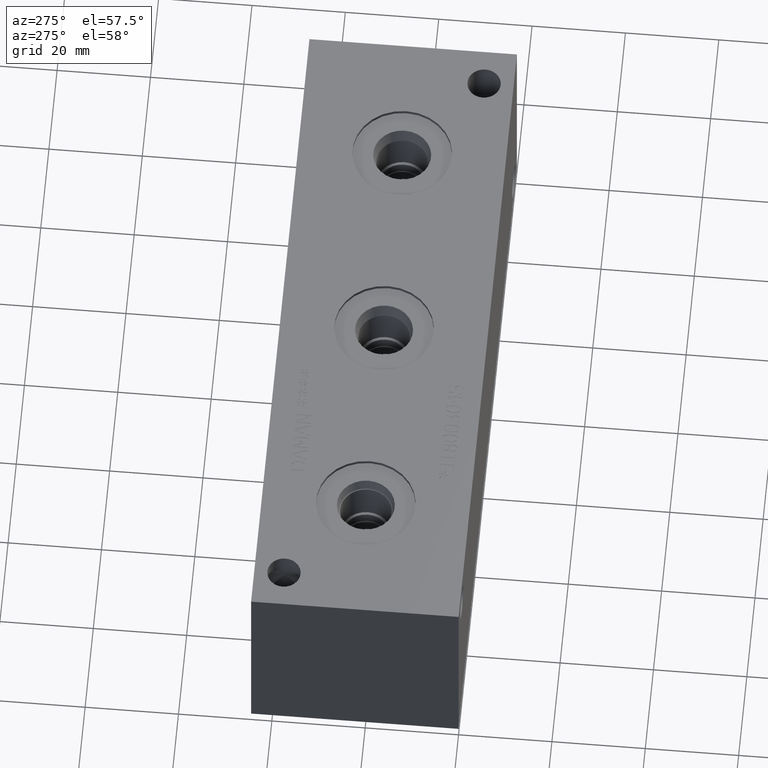
[diagram: clean part render]
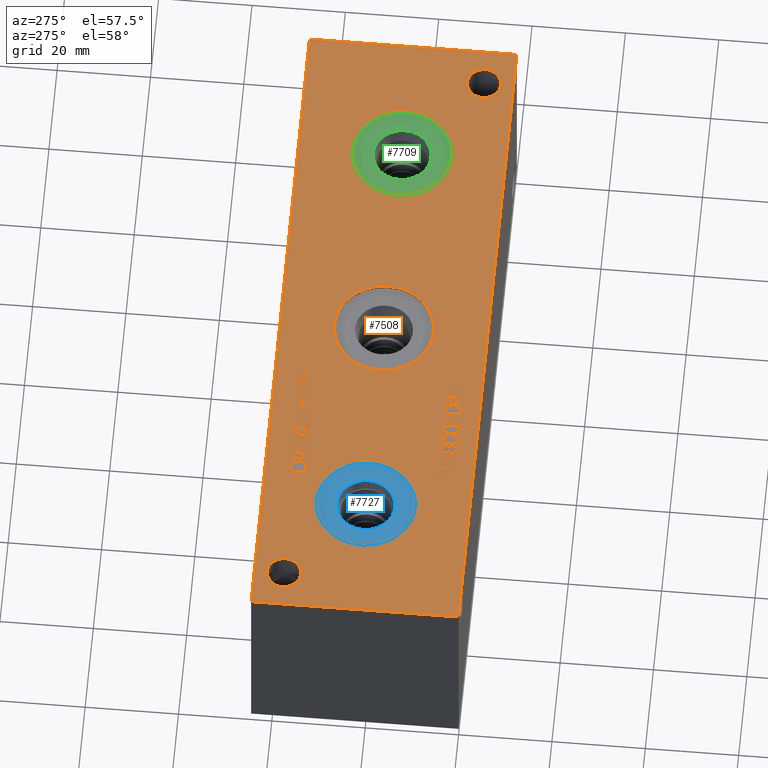
[diagram: same view with three faces highlighted in distinct colors, each labeled with its STEP entity id]
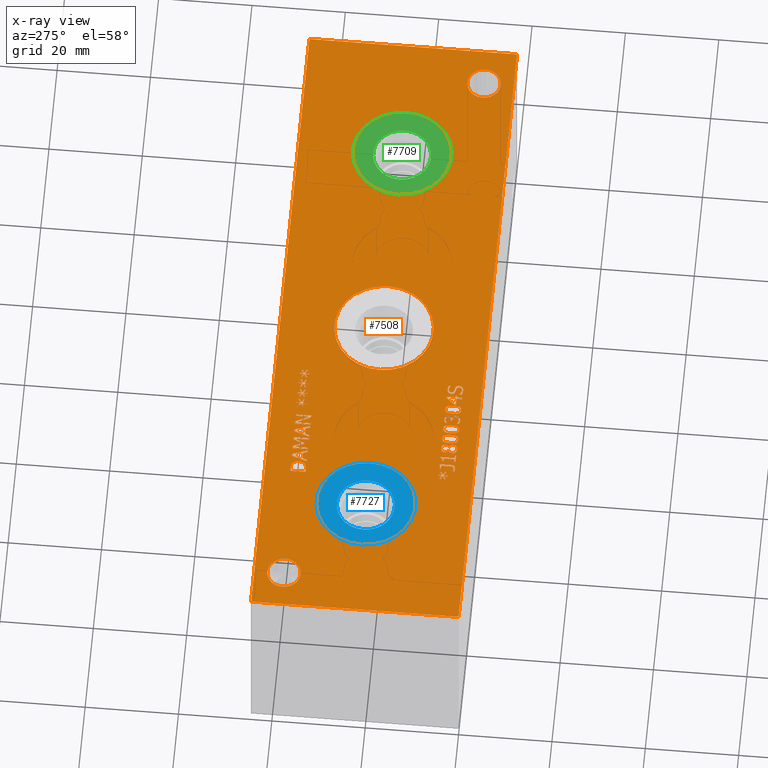
[diagram: x-ray of the same camera — body ghosted, the three highlighted faces saturated]
A machine part, auxiliary view with three faces highlighted in distinct colors.
The next image is the same camera in x-ray (body ghosted, the three faces saturated) — at least one of them is partly hidden behind the body in this view.
Their STEP definitions:

[orange] entity #7508 — the highlighted planar face has unit normal (0, 0, 1).
#83=CIRCLE('',#7824,10.6426);
#84=CIRCLE('',#7825,10.6426);
#85=CIRCLE('',#7826,3.5687);
#86=CIRCLE('',#7827,3.5687);
#87=CIRCLE('',#7828,3.5687);
#88=CIRCLE('',#7829,3.5687);
#89=CIRCLE('',#7830,10.6426);
#90=CIRCLE('',#7831,10.6426);
#91=CIRCLE('',#7832,10.6426);
#92=CIRCLE('',#7833,10.6426);
#206=FACE_BOUND('',#1059,.T.);
#207=FACE_BOUND('',#1060,.T.);
#208=FACE_BOUND('',#1061,.T.);
#209=FACE_BOUND('',#1062,.T.);
#210=FACE_BOUND('',#1063,.T.);
#211=FACE_BOUND('',#1064,.T.);
#212=FACE_BOUND('',#1065,.T.);
#213=FACE_BOUND('',#1066,.T.);
#214=FACE_BOUND('',#1067,.T.);
#215=FACE_BOUND('',#1068,.T.);
#216=FACE_BOUND('',#1069,.T.);
#217=FACE_BOUND('',#1070,.T.);
#218=FACE_BOUND('',#1071,.T.);
#219=FACE_BOUND('',#1072,.T.);
#220=FACE_BOUND('',#1073,.T.);
#221=FACE_BOUND('',#1074,.T.);
#222=FACE_BOUND('',#1075,.T.);
#223=FACE_BOUND('',#1076,.T.);
#224=FACE_BOUND('',#1077,.T.);
#225=FACE_BOUND('',#1078,.T.);
#226=FACE_BOUND('',#1079,.T.);
#227=FACE_BOUND('',#1080,.T.);
#228=FACE_BOUND('',#1081,.T.);
#229=FACE_BOUND('',#1082,.T.);
#327=PLANE('',#7823);
#655=FACE_OUTER_BOUND('',#1058,.T.);
#1058=EDGE_LOOP('',(#5584,#5585,#5586,#5587));
#1059=EDGE_LOOP('',(#5588,#5589,#5590,#5591,#5592,#5593,#5594,#5595,#5596,
#5597,#5598,#5599,#5600,#5601,#5602,#5603,#5604,#5605,#5606,#5607,#5608,
#5609,#5610,#5611,#5612,#5613,#5614));
#1060=EDGE_LOOP('',(#5615,#5616,#5617,#5618));
#1061=EDGE_LOOP('',(#5619,#5620,#5621,#5622));
#1062=EDGE_LOOP('',(#5623,#5624,#5625,#5626,#5627,#5628,#5629,#5630,#5631,
#5632,#5633));
#1063=EDGE_LOOP('',(#5634,#5635,#5636,#5637,#5638,#5639,#5640,#5641,#5642,
#5643,#5644,#5645,#5646,#5647,#5648,#5649,#5650,#5651));
#1064=EDGE_LOOP('',(#5652,#5653,#5654,#5655,#5656,#5657,#5658,#5659,#5660,
#5661,#5662,#5663));
#1065=EDGE_LOOP('',(#5664,#5665,#5666,#5667,#5668,#5669,#5670,#5671,#5672,
#5673,#5674));
#1066=EDGE_LOOP('',(#5675,#5676,#5677,#5678));
#1067=EDGE_LOOP('',(#5679,#5680,#5681,#5682,#5683,#5684,#5685,#5686,#5687,
#5688,#5689));
#1068=EDGE_LOOP('',(#5690,#5691,#5692,#5693,#5694,#5695,#5696,#5697,#5698,
#5699,#5700,#5701,#5702,#5703,#5704,#5705,#5706,#5707,#5708,#5709));
#1069=EDGE_LOOP('',(#5710,#5711));
#1070=EDGE_LOOP('',(#5712,#5713));
#1071=EDGE_LOOP('',(#5714,#5715));
#1072=EDGE_LOOP('',(#5716,#5717));
#1073=EDGE_LOOP('',(#5718,#5719));
#1074=EDGE_LOOP('',(#5720,#5721,#5722,#5723,#5724,#5725,#5726,#5727,#5728,
#5729,#5730,#5731,#5732,#5733,#5734,#5735,#5736,#5737));
#1075=EDGE_LOOP('',(#5738,#5739,#5740,#5741,#5742,#5743,#5744,#5745,#5746,
#5747,#5748,#5749,#5750,#5751,#5752,#5753,#5754,#5755));
#1076=EDGE_LOOP('',(#5756,#5757,#5758,#5759,#5760,#5761,#5762,#5763,#5764,
#5765));
#1077=EDGE_LOOP('',(#5766,#5767,#5768,#5769,#5770,#5771,#5772,#5773));
#1078=EDGE_LOOP('',(#5774,#5775,#5776,#5777,#5778,#5779,#5780));
#1079=EDGE_LOOP('',(#5781,#5782,#5783,#5784,#5785,#5786,#5787,#5788));
#1080=EDGE_LOOP('',(#5789,#5790,#5791,#5792,#5793,#5794,#5795,#5796,#5797,
#5798,#5799,#5800,#5801));
#1081=EDGE_LOOP('',(#5802,#5803,#5804,#5805,#5806,#5807,#5808,#5809,#5810,
#5811,#5812,#5813,#5814,#5815,#5816,#5817,#5818,#5819));
#1082=EDGE_LOOP('',(#5820,#5821,#5822,#5823,#5824,#5825,#5826,#5827,#5828,
#5829,#5830,#5831,#5832,#5833,#5834,#5835,#5836,#5837));
#1338=LINE('',#9804,#2073);
#1341=LINE('',#9810,#2076);
#1344=LINE('',#9816,#2079);
#1352=LINE('',#9917,#2087);
#1355=LINE('',#9923,#2090);
#1363=LINE('',#10024,#2098);
#1370=LINE('',#10106,#2105);
#1373=LINE('',#10112,#2108);
#1401=LINE('',#10613,#2136);
#1405=LINE('',#10621,#2140);
#1408=LINE('',#10627,#2143);
#1411=LINE('',#10633,#2146);
#1415=LINE('',#10658,#2150);
#1418=LINE('',#10664,#2153);
#1421=LINE('',#10670,#2156);
#1424=LINE('',#10676,#2159);
#1427=LINE('',#10682,#2162);
#1430=LINE('',#10687,#2165);
#1432=LINE('',#10693,#2167);
#1436=LINE('',#10701,#2171);
#1439=LINE('',#10707,#2174);
#1442=LINE('',#10713,#2177);
#1445=LINE('',#10719,#2180);
#1448=LINE('',#10725,#2183);
#1451=LINE('',#10731,#2186);
#1454=LINE('',#10737,#2189);
#1457=LINE('',#10743,#2192);
#1460=LINE('',#10749,#2195);
#1463=LINE('',#10755,#2198);
#1466=LINE('',#10761,#2201);
#1469=LINE('',#10767,#2204);
#1472=LINE('',#10773,#2207);
#1475=LINE('',#10779,#2210);
#1478=LINE('',#10785,#2213);
#1481=LINE('',#10791,#2216);
#1484=LINE('',#10796,#2219);
#1486=LINE('',#10802,#2221);
#1490=LINE('',#10810,#2225);
#1493=LINE('',#10816,#2228);
#1496=LINE('',#10822,#2231);
#1499=LINE('',#10828,#2234);
#1505=LINE('',#10891,#2240);
#1508=LINE('',#10897,#2243);
#1525=LINE('',#11170,#2260);
#1532=LINE('',#11252,#2267);
#1558=LINE('',#11561,#2293);
#1562=LINE('',#11569,#2297);
#1565=LINE('',#11575,#2300);
#1568=LINE('',#11581,#2303);
#1571=LINE('',#11587,#2306);
#1574=LINE('',#11593,#2309);
#1577=LINE('',#11599,#2312);
#1580=LINE('',#11605,#2315);
#1583=LINE('',#11611,#2318);
#1586=LINE('',#11617,#2321);
#1589=LINE('',#11622,#2324);
#1599=LINE('',#11763,#2334);
#1602=LINE('',#11769,#2337);
#1613=LINE('',#11927,#2348);
#1616=LINE('',#11933,#2351);
#1619=LINE('',#11957,#2354);
#1620=LINE('',#11959,#2355);
#1621=LINE('',#11961,#2356);
#1622=LINE('',#11962,#2357);
#1623=LINE('',#11985,#2358);
#1624=LINE('',#11987,#2359);
#1625=LINE('',#11989,#2360);
#1626=LINE('',#11991,#2361);
#1627=LINE('',#11993,#2362);
#1628=LINE('',#11995,#2363);
#1629=LINE('',#11997,#2364);
#1630=LINE('',#11999,#2365);
#1631=LINE('',#12001,#2366);
#1632=LINE('',#12003,#2367);
#1633=LINE('',#12005,#2368);
#1634=LINE('',#12007,#2369);
#1635=LINE('',#12009,#2370);
#1636=LINE('',#12011,#2371);
#1637=LINE('',#12013,#2372);
#1638=LINE('',#12015,#2373);
#1639=LINE('',#12017,#2374);
#1640=LINE('',#12018,#2375);
#1641=LINE('',#12021,#2376);
#1642=LINE('',#12023,#2377);
#1643=LINE('',#12025,#2378);
#1644=LINE('',#12027,#2379);
#1645=LINE('',#12029,#2380);
#1646=LINE('',#12031,#2381);
#1647=LINE('',#12033,#2382);
#1648=LINE('',#12035,#2383);
#1649=LINE('',#12037,#2384);
#1650=LINE('',#12039,#2385);
#1651=LINE('',#12041,#2386);
#1652=LINE('',#12043,#2387);
#1653=LINE('',#12045,#2388);
#1654=LINE('',#12047,#2389);
#1655=LINE('',#12049,#2390);
#1656=LINE('',#12051,#2391);
#1657=LINE('',#12053,#2392);
#1658=LINE('',#12054,#2393);
#1659=LINE('',#12057,#2394);
#1660=LINE('',#12059,#2395);
#1661=LINE('',#12061,#2396);
#1662=LINE('',#12063,#2397);
#1663=LINE('',#12065,#2398);
#1664=LINE('',#12067,#2399);
#1665=LINE('',#12069,#2400);
#1666=LINE('',#12071,#2401);
#1667=LINE('',#12073,#2402);
#1668=LINE('',#12074,#2403);
#1669=LINE('',#12077,#2404);
#1670=LINE('',#12079,#2405);
#1671=LINE('',#12081,#2406);
#1672=LINE('',#12083,#2407);
#1673=LINE('',#12085,#2408);
#1674=LINE('',#12087,#2409);
#1675=LINE('',#12089,#2410);
#1676=LINE('',#12090,#2411);
#1677=LINE('',#12108,#2412);
#1678=LINE('',#12110,#2413);
#1679=LINE('',#12112,#2414);
#1680=LINE('',#12119,#2415);
#1681=LINE('',#12121,#2416);
#1682=LINE('',#12123,#2417);
#1683=LINE('',#12125,#2418);
#1684=LINE('',#12127,#2419);
#1685=LINE('',#12129,#2420);
#1686=LINE('',#12131,#2421);
#1687=LINE('',#12132,#2422);
#1688=LINE('',#12135,#2423);
#1689=LINE('',#12137,#2424);
#1690=LINE('',#12139,#2425);
#1691=LINE('',#12141,#2426);
#1692=LINE('',#12143,#2427);
#1693=LINE('',#12145,#2428);
#1694=LINE('',#12147,#2429);
#1695=LINE('',#12149,#2430);
#1696=LINE('',#12151,#2431);
#1697=LINE('',#12153,#2432);
#1698=LINE('',#12155,#2433);
#1699=LINE('',#12157,#2434);
#1700=LINE('',#12158,#2435);
#1701=LINE('',#12161,#2436);
#1702=LINE('',#12163,#2437);
#1703=LINE('',#12165,#2438);
#1704=LINE('',#12167,#2439);
#1705=LINE('',#12169,#2440);
#1706=LINE('',#12171,#2441);
#1707=LINE('',#12173,#2442);
#1708=LINE('',#12175,#2443);
#1709=LINE('',#12177,#2444);
#1710=LINE('',#12179,#2445);
#1711=LINE('',#12181,#2446);
#1712=LINE('',#12183,#2447);
#1713=LINE('',#12185,#2448);
#1714=LINE('',#12187,#2449);
#1715=LINE('',#12189,#2450);
#1716=LINE('',#12191,#2451);
#1717=LINE('',#12193,#2452);
#1718=LINE('',#12194,#2453);
#1719=LINE('',#12197,#2454);
#1720=LINE('',#12199,#2455);
#1721=LINE('',#12201,#2456);
#1722=LINE('',#12203,#2457);
#1723=LINE('',#12205,#2458);
#1724=LINE('',#12207,#2459);
#1725=LINE('',#12209,#2460);
#1726=LINE('',#12211,#2461);
#1727=LINE('',#12213,#2462);
#1728=LINE('',#12215,#2463);
#1729=LINE('',#12217,#2464);
#1730=LINE('',#12219,#2465);
#1731=LINE('',#12221,#2466);
#1732=LINE('',#12223,#2467);
#1733=LINE('',#12225,#2468);
#1734=LINE('',#12227,#2469);
#1735=LINE('',#12229,#2470);
#1736=LINE('',#12230,#2471);
#2073=VECTOR('',#8176,10.);
#2076=VECTOR('',#8181,10.);
#2079=VECTOR('',#8186,10.);
#2087=VECTOR('',#8196,10.);
#2090=VECTOR('',#8201,10.);
#2098=VECTOR('',#8211,10.);
#2105=VECTOR('',#8220,10.);
#2108=VECTOR('',#8225,10.);
#2136=VECTOR('',#8261,10.);
#2140=VECTOR('',#8267,10.);
#2143=VECTOR('',#8272,10.);
#2146=VECTOR('',#8277,10.);
#2150=VECTOR('',#8283,10.);
#2153=VECTOR('',#8288,10.);
#2156=VECTOR('',#8293,10.);
#2159=VECTOR('',#8298,10.);
#2162=VECTOR('',#8303,10.);
#2165=VECTOR('',#8308,10.);
#2167=VECTOR('',#8314,10.);
#2171=VECTOR('',#8320,10.);
#2174=VECTOR('',#8325,10.);
#2177=VECTOR('',#8330,10.);
#2180=VECTOR('',#8335,10.);
#2183=VECTOR('',#8340,10.);
#2186=VECTOR('',#8345,10.);
#2189=VECTOR('',#8350,10.);
#2192=VECTOR('',#8355,10.);
#2195=VECTOR('',#8360,10.);
#2198=VECTOR('',#8365,10.);
#2201=VECTOR('',#8370,10.);
#2204=VECTOR('',#8375,10.);
#2207=VECTOR('',#8380,10.);
#2210=VECTOR('',#8385,10.);
#2213=VECTOR('',#8390,10.);
#2216=VECTOR('',#8395,10.);
#2219=VECTOR('',#8400,10.);
#2221=VECTOR('',#8406,10.);
#2225=VECTOR('',#8412,10.);
#2228=VECTOR('',#8417,10.);
#2231=VECTOR('',#8422,10.);
#2234=VECTOR('',#8427,10.);
#2240=VECTOR('',#8435,10.);
#2243=VECTOR('',#8440,10.);
#2260=VECTOR('',#8461,10.);
#2267=VECTOR('',#8470,10.);
#2293=VECTOR('',#8508,10.);
#2297=VECTOR('',#8514,10.);
#2300=VECTOR('',#8519,10.);
#2303=VECTOR('',#8524,10.);
#2306=VECTOR('',#8529,10.);
#2309=VECTOR('',#8534,10.);
#2312=VECTOR('',#8539,10.);
#2315=VECTOR('',#8544,10.);
#2318=VECTOR('',#8549,10.);
#2321=VECTOR('',#8554,10.);
#2324=VECTOR('',#8559,10.);
#2334=VECTOR('',#8573,10.);
#2337=VECTOR('',#8578,10.);
#2348=VECTOR('',#8591,10.);
#2351=VECTOR('',#8596,10.);
#2354=VECTOR('',#8603,10.);
#2355=VECTOR('',#8604,10.);
#2356=VECTOR('',#8605,10.);
#2357=VECTOR('',#8606,10.);
#2358=VECTOR('',#8627,10.);
#2359=VECTOR('',#8628,10.);
#2360=VECTOR('',#8629,10.);
#2361=VECTOR('',#8630,10.);
#2362=VECTOR('',#8631,10.);
#2363=VECTOR('',#8632,10.);
#2364=VECTOR('',#8633,10.);
#2365=VECTOR('',#8634,10.);
#2366=VECTOR('',#8635,10.);
#2367=VECTOR('',#8636,10.);
#2368=VECTOR('',#8637,10.);
#2369=VECTOR('',#8638,10.);
#2370=VECTOR('',#8639,10.);
#2371=VECTOR('',#8640,10.);
#2372=VECTOR('',#8641,10.);
#2373=VECTOR('',#8642,10.);
#2374=VECTOR('',#8643,10.);
#2375=VECTOR('',#8644,10.);
#2376=VECTOR('',#8645,10.);
#2377=VECTOR('',#8646,10.);
#2378=VECTOR('',#8647,10.);
#2379=VECTOR('',#8648,10.);
#2380=VECTOR('',#8649,10.);
#2381=VECTOR('',#8650,10.);
#2382=VECTOR('',#8651,10.);
#2383=VECTOR('',#8652,10.);
#2384=VECTOR('',#8653,10.);
#2385=VECTOR('',#8654,10.);
#2386=VECTOR('',#8655,10.);
#2387=VECTOR('',#8656,10.);
#2388=VECTOR('',#8657,10.);
#2389=VECTOR('',#8658,10.);
#2390=VECTOR('',#8659,10.);
#2391=VECTOR('',#8660,10.);
#2392=VECTOR('',#8661,10.);
#2393=VECTOR('',#8662,10.);
#2394=VECTOR('',#8663,10.);
#2395=VECTOR('',#8664,10.);
#2396=VECTOR('',#8665,10.);
#2397=VECTOR('',#8666,10.);
#2398=VECTOR('',#8667,10.);
#2399=VECTOR('',#8668,10.);
#2400=VECTOR('',#8669,10.);
#2401=VECTOR('',#8670,10.);
#2402=VECTOR('',#8671,10.);
#2403=VECTOR('',#8672,10.);
#2404=VECTOR('',#8673,10.);
#2405=VECTOR('',#8674,10.);
#2406=VECTOR('',#8675,10.);
#2407=VECTOR('',#8676,10.);
#2408=VECTOR('',#8677,10.);
#2409=VECTOR('',#8678,10.);
#2410=VECTOR('',#8679,10.);
#2411=VECTOR('',#8680,10.);
#2412=VECTOR('',#8681,10.);
#2413=VECTOR('',#8682,10.);
#2414=VECTOR('',#8683,10.);
#2415=VECTOR('',#8684,10.);
#2416=VECTOR('',#8685,10.);
#2417=VECTOR('',#8686,10.);
#2418=VECTOR('',#8687,10.);
#2419=VECTOR('',#8688,10.);
#2420=VECTOR('',#8689,10.);
#2421=VECTOR('',#8690,10.);
#2422=VECTOR('',#8691,10.);
#2423=VECTOR('',#8692,10.);
#2424=VECTOR('',#8693,10.);
#2425=VECTOR('',#8694,10.);
#2426=VECTOR('',#8695,10.);
#2427=VECTOR('',#8696,10.);
#2428=VECTOR('',#8697,10.);
#2429=VECTOR('',#8698,10.);
#2430=VECTOR('',#8699,10.);
#2431=VECTOR('',#8700,10.);
#2432=VECTOR('',#8701,10.);
#2433=VECTOR('',#8702,10.);
#2434=VECTOR('',#8703,10.);
#2435=VECTOR('',#8704,10.);
#2436=VECTOR('',#8705,10.);
#2437=VECTOR('',#8706,10.);
#2438=VECTOR('',#8707,10.);
#2439=VECTOR('',#8708,10.);
#2440=VECTOR('',#8709,10.);
#2441=VECTOR('',#8710,10.);
#2442=VECTOR('',#8711,10.);
#2443=VECTOR('',#8712,10.);
#2444=VECTOR('',#8713,10.);
#2445=VECTOR('',#8714,10.);
#2446=VECTOR('',#8715,10.);
#2447=VECTOR('',#8716,10.);
#2448=VECTOR('',#8717,10.);
#2449=VECTOR('',#8718,10.);
#2450=VECTOR('',#8719,10.);
#2451=VECTOR('',#8720,10.);
#2452=VECTOR('',#8721,10.);
#2453=VECTOR('',#8722,10.);
#2454=VECTOR('',#8723,10.);
#2455=VECTOR('',#8724,10.);
#2456=VECTOR('',#8725,10.);
#2457=VECTOR('',#8726,10.);
#2458=VECTOR('',#8727,10.);
#2459=VECTOR('',#8728,10.);
#2460=VECTOR('',#8729,10.);
#2461=VECTOR('',#8730,10.);
#2462=VECTOR('',#8731,10.);
#2463=VECTOR('',#8732,10.);
#2464=VECTOR('',#8733,10.);
#2465=VECTOR('',#8734,10.);
#2466=VECTOR('',#8735,10.);
#2467=VECTOR('',#8736,10.);
#2468=VECTOR('',#8737,10.);
#2469=VECTOR('',#8738,10.);
#2470=VECTOR('',#8739,10.);
#2471=VECTOR('',#8740,10.);
#2804=B_SPLINE_CURVE_WITH_KNOTS('',2,(#9752,#9753,#9754,#9755),
 .UNSPECIFIED.,.F.,.F.,(3,1,3),(0.,1.,2.),.UNSPECIFIED.);
#2806=B_SPLINE_CURVE_WITH_KNOTS('',2,(#9773,#9774,#9775,#9776),
 .UNSPECIFIED.,.F.,.F.,(3,1,3),(0.,1.,2.),.UNSPECIFIED.);
#2808=B_SPLINE_CURVE_WITH_KNOTS('',2,(#9792,#9793,#9794,#9795),
 .UNSPECIFIED.,.F.,.F.,(3,1,3),(0.,1.,2.),.UNSPECIFIED.);
#2810=B_SPLINE_CURVE_WITH_KNOTS('',2,(#9829,#9830,#9831,#9832),
 .UNSPECIFIED.,.F.,.F.,(3,1,3),(0.,1.,2.),.UNSPECIFIED.);
#2812=B_SPLINE_CURVE_WITH_KNOTS('',2,(#9848,#9849,#9850,#9851),
 .UNSPECIFIED.,.F.,.F.,(3,1,3),(0.,1.,2.),.UNSPECIFIED.);
#2814=B_SPLINE_CURVE_WITH_KNOTS('',2,(#9867,#9868,#9869,#9870),
 .UNSPECIFIED.,.F.,.F.,(3,1,3),(0.,1.,2.),.UNSPECIFIED.);
#2816=B_SPLINE_CURVE_WITH_KNOTS('',2,(#9886,#9887,#9888,#9889),
 .UNSPECIFIED.,.F.,.F.,(3,1,3),(0.,1.,2.),.UNSPECIFIED.);
#2818=B_SPLINE_CURVE_WITH_KNOTS('',2,(#9905,#9906,#9907,#9908),
 .UNSPECIFIED.,.F.,.F.,(3,1,3),(0.,1.,2.),.UNSPECIFIED.);
#2820=B_SPLINE_CURVE_WITH_KNOTS('',2,(#9936,#9937,#9938,#9939),
 .UNSPECIFIED.,.F.,.F.,(3,1,3),(0.,1.,2.),.UNSPECIFIED.);
#2822=B_SPLINE_CURVE_WITH_KNOTS('',2,(#9955,#9956,#9957,#9958),
 .UNSPECIFIED.,.F.,.F.,(3,1,3),(0.,1.,2.),.UNSPECIFIED.);
#2824=B_SPLINE_CURVE_WITH_KNOTS('',2,(#9974,#9975,#9976,#9977),
 .UNSPECIFIED.,.F.,.F.,(3,1,3),(0.,1.,2.),.UNSPECIFIED.);
#2826=B_SPLINE_CURVE_WITH_KNOTS('',2,(#9993,#9994,#9995,#9996),
 .UNSPECIFIED.,.F.,.F.,(3,1,3),(0.,1.,2.),.UNSPECIFIED.);
#2828=B_SPLINE_CURVE_WITH_KNOTS('',2,(#10012,#10013,#10014,#10015),
 .UNSPECIFIED.,.F.,.F.,(3,1,3),(0.,1.,2.),.UNSPECIFIED.);
#2830=B_SPLINE_CURVE_WITH_KNOTS('',2,(#10037,#10038,#10039,#10040),
 .UNSPECIFIED.,.F.,.F.,(3,1,3),(0.,1.,2.),.UNSPECIFIED.);
#2832=B_SPLINE_CURVE_WITH_KNOTS('',2,(#10056,#10057,#10058,#10059),
 .UNSPECIFIED.,.F.,.F.,(3,1,3),(0.,1.,2.),.UNSPECIFIED.);
#2834=B_SPLINE_CURVE_WITH_KNOTS('',2,(#10075,#10076,#10077,#10078),
 .UNSPECIFIED.,.F.,.F.,(3,1,3),(0.,1.,2.),.UNSPECIFIED.);
#2836=B_SPLINE_CURVE_WITH_KNOTS('',2,(#10094,#10095,#10096,#10097),
 .UNSPECIFIED.,.F.,.F.,(3,1,3),(0.,1.,2.),.UNSPECIFIED.);
#2838=B_SPLINE_CURVE_WITH_KNOTS('',2,(#10125,#10126,#10127,#10128),
 .UNSPECIFIED.,.F.,.F.,(3,1,3),(0.,1.,2.),.UNSPECIFIED.);
#2840=B_SPLINE_CURVE_WITH_KNOTS('',2,(#10143,#10144,#10145,#10146),
 .UNSPECIFIED.,.F.,.F.,(3,1,3),(0.,1.,2.),.UNSPECIFIED.);
#2858=B_SPLINE_CURVE_WITH_KNOTS('',2,(#10314,#10315,#10316,#10317),
 .UNSPECIFIED.,.F.,.F.,(3,1,3),(0.,1.,2.),.UNSPECIFIED.);
#2860=B_SPLINE_CURVE_WITH_KNOTS('',2,(#10335,#10336,#10337,#10338),
 .UNSPECIFIED.,.F.,.F.,(3,1,3),(0.,1.,2.),.UNSPECIFIED.);
#2862=B_SPLINE_CURVE_WITH_KNOTS('',2,(#10354,#10355,#10356,#10357),
 .UNSPECIFIED.,.F.,.F.,(3,1,3),(0.,1.,2.),.UNSPECIFIED.);
#2864=B_SPLINE_CURVE_WITH_KNOTS('',2,(#10372,#10373,#10374,#10375),
 .UNSPECIFIED.,.F.,.F.,(3,1,3),(0.,1.,2.),.UNSPECIFIED.);
#2882=B_SPLINE_CURVE_WITH_KNOTS('',2,(#10543,#10544,#10545,#10546),
 .UNSPECIFIED.,.F.,.F.,(3,1,3),(0.,1.,2.),.UNSPECIFIED.);
#2884=B_SPLINE_CURVE_WITH_KNOTS('',2,(#10564,#10565,#10566,#10567),
 .UNSPECIFIED.,.F.,.F.,(3,1,3),(0.,1.,2.),.UNSPECIFIED.);
#2886=B_SPLINE_CURVE_WITH_KNOTS('',2,(#10583,#10584,#10585,#10586),
 .UNSPECIFIED.,.F.,.F.,(3,1,3),(0.,1.,2.),.UNSPECIFIED.);
#2888=B_SPLINE_CURVE_WITH_KNOTS('',2,(#10601,#10602,#10603,#10604),
 .UNSPECIFIED.,.F.,.F.,(3,1,3),(0.,1.,2.),.UNSPECIFIED.);
#2890=B_SPLINE_CURVE_WITH_KNOTS('',2,(#10646,#10647,#10648,#10649),
 .UNSPECIFIED.,.F.,.F.,(3,1,3),(0.,1.,2.),.UNSPECIFIED.);
#2892=B_SPLINE_CURVE_WITH_KNOTS('',2,(#10841,#10842,#10843,#10844),
 .UNSPECIFIED.,.F.,.F.,(3,1,3),(0.,1.,2.),.UNSPECIFIED.);
#2894=B_SPLINE_CURVE_WITH_KNOTS('',2,(#10860,#10861,#10862,#10863),
 .UNSPECIFIED.,.F.,.F.,(3,1,3),(0.,1.,2.),.UNSPECIFIED.);
#2896=B_SPLINE_CURVE_WITH_KNOTS('',2,(#10879,#10880,#10881,#10882),
 .UNSPECIFIED.,.F.,.F.,(3,1,3),(0.,1.,2.),.UNSPECIFIED.);
#2898=B_SPLINE_CURVE_WITH_KNOTS('',2,(#10910,#10911,#10912,#10913),
 .UNSPECIFIED.,.F.,.F.,(3,1,3),(0.,1.,2.),.UNSPECIFIED.);
#2900=B_SPLINE_CURVE_WITH_KNOTS('',2,(#10928,#10929,#10930,#10931),
 .UNSPECIFIED.,.F.,.F.,(3,1,3),(0.,1.,2.),.UNSPECIFIED.);
#2922=B_SPLINE_CURVE_WITH_KNOTS('',2,(#11137,#11138,#11139,#11140),
 .UNSPECIFIED.,.F.,.F.,(3,1,3),(0.,1.,2.),.UNSPECIFIED.);
#2924=B_SPLINE_CURVE_WITH_KNOTS('',2,(#11158,#11159,#11160,#11161),
 .UNSPECIFIED.,.F.,.F.,(3,1,3),(0.,1.,2.),.UNSPECIFIED.);
#2926=B_SPLINE_CURVE_WITH_KNOTS('',2,(#11183,#11184,#11185,#11186),
 .UNSPECIFIED.,.F.,.F.,(3,1,3),(0.,1.,2.),.UNSPECIFIED.);
#2928=B_SPLINE_CURVE_WITH_KNOTS('',2,(#11202,#11203,#11204,#11205),
 .UNSPECIFIED.,.F.,.F.,(3,1,3),(0.,1.,2.),.UNSPECIFIED.);
#2930=B_SPLINE_CURVE_WITH_KNOTS('',2,(#11221,#11222,#11223,#11224),
 .UNSPECIFIED.,.F.,.F.,(3,1,3),(0.,1.,2.),.UNSPECIFIED.);
#2932=B_SPLINE_CURVE_WITH_KNOTS('',2,(#11240,#11241,#11242,#11243),
 .UNSPECIFIED.,.F.,.F.,(3,1,3),(0.,1.,2.),.UNSPECIFIED.);
#2934=B_SPLINE_CURVE_WITH_KNOTS('',2,(#11265,#11266,#11267,#11268),
 .UNSPECIFIED.,.F.,.F.,(3,1,3),(0.,1.,2.),.UNSPECIFIED.);
#2936=B_SPLINE_CURVE_WITH_KNOTS('',2,(#11284,#11285,#11286,#11287),
 .UNSPECIFIED.,.F.,.F.,(3,1,3),(0.,1.,2.),.UNSPECIFIED.);
#2938=B_SPLINE_CURVE_WITH_KNOTS('',2,(#11302,#11303,#11304,#11305),
 .UNSPECIFIED.,.F.,.F.,(3,1,3),(0.,1.,2.),.UNSPECIFIED.);
#2956=B_SPLINE_CURVE_WITH_KNOTS('',2,(#11473,#11474,#11475,#11476),
 .UNSPECIFIED.,.F.,.F.,(3,1,3),(0.,1.,2.),.UNSPECIFIED.);
#2958=B_SPLINE_CURVE_WITH_KNOTS('',2,(#11494,#11495,#11496,#11497),
 .UNSPECIFIED.,.F.,.F.,(3,1,3),(0.,1.,2.),.UNSPECIFIED.);
#2960=B_SPLINE_CURVE_WITH_KNOTS('',2,(#11513,#11514,#11515,#11516),
 .UNSPECIFIED.,.F.,.F.,(3,1,3),(0.,1.,2.),.UNSPECIFIED.);
#2962=B_SPLINE_CURVE_WITH_KNOTS('',2,(#11531,#11532,#11533,#11534),
 .UNSPECIFIED.,.F.,.F.,(3,1,3),(0.,1.,2.),.UNSPECIFIED.);
#2964=B_SPLINE_CURVE_WITH_KNOTS('',2,(#11635,#11636,#11637,#11638),
 .UNSPECIFIED.,.F.,.F.,(3,1,3),(0.,1.,2.),.UNSPECIFIED.);
#2966=B_SPLINE_CURVE_WITH_KNOTS('',2,(#11656,#11657,#11658,#11659),
 .UNSPECIFIED.,.F.,.F.,(3,1,3),(0.,1.,2.),.UNSPECIFIED.);
#2968=B_SPLINE_CURVE_WITH_KNOTS('',2,(#11675,#11676,#11677,#11678),
 .UNSPECIFIED.,.F.,.F.,(3,1,3),(0.,1.,2.),.UNSPECIFIED.);
#2970=B_SPLINE_CURVE_WITH_KNOTS('',2,(#11694,#11695,#11696,#11697),
 .UNSPECIFIED.,.F.,.F.,(3,1,3),(0.,1.,2.),.UNSPECIFIED.);
#2972=B_SPLINE_CURVE_WITH_KNOTS('',2,(#11713,#11714,#11715,#11716),
 .UNSPECIFIED.,.F.,.F.,(3,1,3),(0.,1.,2.),.UNSPECIFIED.);
#2974=B_SPLINE_CURVE_WITH_KNOTS('',2,(#11732,#11733,#11734,#11735),
 .UNSPECIFIED.,.F.,.F.,(3,1,3),(0.,1.,2.),.UNSPECIFIED.);
#2976=B_SPLINE_CURVE_WITH_KNOTS('',2,(#11751,#11752,#11753,#11754),
 .UNSPECIFIED.,.F.,.F.,(3,1,3),(0.,1.,2.),.UNSPECIFIED.);
#2978=B_SPLINE_CURVE_WITH_KNOTS('',2,(#11782,#11783,#11784,#11785),
 .UNSPECIFIED.,.F.,.F.,(3,1,3),(0.,1.,2.),.UNSPECIFIED.);
#2980=B_SPLINE_CURVE_WITH_KNOTS('',2,(#11801,#11802,#11803,#11804),
 .UNSPECIFIED.,.F.,.F.,(3,1,3),(0.,1.,2.),.UNSPECIFIED.);
#2982=B_SPLINE_CURVE_WITH_KNOTS('',2,(#11820,#11821,#11822,#11823),
 .UNSPECIFIED.,.F.,.F.,(3,1,3),(0.,1.,2.),.UNSPECIFIED.);
#2984=B_SPLINE_CURVE_WITH_KNOTS('',2,(#11839,#11840,#11841,#11842),
 .UNSPECIFIED.,.F.,.F.,(3,1,3),(0.,1.,2.),.UNSPECIFIED.);
#2986=B_SPLINE_CURVE_WITH_KNOTS('',2,(#11858,#11859,#11860,#11861),
 .UNSPECIFIED.,.F.,.F.,(3,1,3),(0.,1.,2.),.UNSPECIFIED.);
#2988=B_SPLINE_CURVE_WITH_KNOTS('',2,(#11877,#11878,#11879,#11880),
 .UNSPECIFIED.,.F.,.F.,(3,1,3),(0.,1.,2.),.UNSPECIFIED.);
#2990=B_SPLINE_CURVE_WITH_KNOTS('',2,(#11896,#11897,#11898,#11899),
 .UNSPECIFIED.,.F.,.F.,(3,1,3),(0.,1.,2.),.UNSPECIFIED.);
#2992=B_SPLINE_CURVE_WITH_KNOTS('',2,(#11915,#11916,#11917,#11918),
 .UNSPECIFIED.,.F.,.F.,(3,1,3),(0.,1.,2.),.UNSPECIFIED.);
#2994=B_SPLINE_CURVE_WITH_KNOTS('',2,(#11945,#11946,#11947,#11948),
 .UNSPECIFIED.,.F.,.F.,(3,1,3),(0.,1.,2.),.UNSPECIFIED.);
#2996=B_SPLINE_CURVE_WITH_KNOTS('',2,(#12093,#12094,#12095,#12096),
 .UNSPECIFIED.,.F.,.F.,(3,1,3),(0.,1.,2.),.UNSPECIFIED.);
#2997=B_SPLINE_CURVE_WITH_KNOTS('',2,(#12098,#12099,#12100,#12101),
 .UNSPECIFIED.,.F.,.F.,(3,1,3),(0.,1.,2.),.UNSPECIFIED.);
#2998=B_SPLINE_CURVE_WITH_KNOTS('',2,(#12103,#12104,#12105,#12106),
 .UNSPECIFIED.,.F.,.F.,(3,1,3),(0.,1.,2.),.UNSPECIFIED.);
#2999=B_SPLINE_CURVE_WITH_KNOTS('',2,(#12113,#12114,#12115,#12116),
 .UNSPECIFIED.,.F.,.F.,(3,1,3),(0.,1.,2.),.UNSPECIFIED.);
#3012=VERTEX_POINT('',#9750);
#3013=VERTEX_POINT('',#9751);
#3016=VERTEX_POINT('',#9772);
#3018=VERTEX_POINT('',#9791);
#3020=VERTEX_POINT('',#9803);
#3022=VERTEX_POINT('',#9809);
#3024=VERTEX_POINT('',#9815);
#3026=VERTEX_POINT('',#9828);
#3028=VERTEX_POINT('',#9847);
#3030=VERTEX_POINT('',#9866);
#3032=VERTEX_POINT('',#9885);
#3034=VERTEX_POINT('',#9904);
#3036=VERTEX_POINT('',#9916);
#3038=VERTEX_POINT('',#9922);
#3040=VERTEX_POINT('',#9935);
#3042=VERTEX_POINT('',#9954);
#3044=VERTEX_POINT('',#9973);
#3046=VERTEX_POINT('',#9992);
#3048=VERTEX_POINT('',#10011);
#3050=VERTEX_POINT('',#10023);
#3052=VERTEX_POINT('',#10036);
#3054=VERTEX_POINT('',#10055);
#3056=VERTEX_POINT('',#10074);
#3058=VERTEX_POINT('',#10093);
#3060=VERTEX_POINT('',#10105);
#3062=VERTEX_POINT('',#10111);
#3064=VERTEX_POINT('',#10124);
#3082=VERTEX_POINT('',#10312);
#3083=VERTEX_POINT('',#10313);
#3086=VERTEX_POINT('',#10334);
#3088=VERTEX_POINT('',#10353);
#3106=VERTEX_POINT('',#10541);
#3107=VERTEX_POINT('',#10542);
#3110=VERTEX_POINT('',#10563);
#3112=VERTEX_POINT('',#10582);
#3114=VERTEX_POINT('',#10611);
#3115=VERTEX_POINT('',#10612);
#3118=VERTEX_POINT('',#10620);
#3120=VERTEX_POINT('',#10626);
#3122=VERTEX_POINT('',#10632);
#3124=VERTEX_POINT('',#10645);
#3126=VERTEX_POINT('',#10657);
#3128=VERTEX_POINT('',#10663);
#3130=VERTEX_POINT('',#10669);
#3132=VERTEX_POINT('',#10675);
#3134=VERTEX_POINT('',#10681);
#3136=VERTEX_POINT('',#10691);
#3137=VERTEX_POINT('',#10692);
#3140=VERTEX_POINT('',#10700);
#3142=VERTEX_POINT('',#10706);
#3144=VERTEX_POINT('',#10712);
#3146=VERTEX_POINT('',#10718);
#3148=VERTEX_POINT('',#10724);
#3150=VERTEX_POINT('',#10730);
#3152=VERTEX_POINT('',#10736);
#3154=VERTEX_POINT('',#10742);
#3156=VERTEX_POINT('',#10748);
#3158=VERTEX_POINT('',#10754);
#3160=VERTEX_POINT('',#10760);
#3162=VERTEX_POINT('',#10766);
#3164=VERTEX_POINT('',#10772);
#3166=VERTEX_POINT('',#10778);
#3168=VERTEX_POINT('',#10784);
#3170=VERTEX_POINT('',#10790);
#3172=VERTEX_POINT('',#10800);
#3173=VERTEX_POINT('',#10801);
#3176=VERTEX_POINT('',#10809);
#3178=VERTEX_POINT('',#10815);
#3180=VERTEX_POINT('',#10821);
#3182=VERTEX_POINT('',#10827);
#3184=VERTEX_POINT('',#10840);
#3186=VERTEX_POINT('',#10859);
#3188=VERTEX_POINT('',#10878);
#3190=VERTEX_POINT('',#10890);
#3192=VERTEX_POINT('',#10896);
#3194=VERTEX_POINT('',#10909);
#3216=VERTEX_POINT('',#11135);
#3217=VERTEX_POINT('',#11136);
#3220=VERTEX_POINT('',#11157);
#3222=VERTEX_POINT('',#11169);
#3224=VERTEX_POINT('',#11182);
#3226=VERTEX_POINT('',#11201);
#3228=VERTEX_POINT('',#11220);
#3230=VERTEX_POINT('',#11239);
#3232=VERTEX_POINT('',#11251);
#3234=VERTEX_POINT('',#11264);
#3236=VERTEX_POINT('',#11283);
#3254=VERTEX_POINT('',#11471);
#3255=VERTEX_POINT('',#11472);
#3258=VERTEX_POINT('',#11493);
#3260=VERTEX_POINT('',#11512);
#3268=VERTEX_POINT('',#11559);
#3269=VERTEX_POINT('',#11560);
#3272=VERTEX_POINT('',#11568);
#3274=VERTEX_POINT('',#11574);
#3276=VERTEX_POINT('',#11580);
#3278=VERTEX_POINT('',#11586);
#3280=VERTEX_POINT('',#11592);
#3282=VERTEX_POINT('',#11598);
#3284=VERTEX_POINT('',#11604);
#3286=VERTEX_POINT('',#11610);
#3288=VERTEX_POINT('',#11616);
#3290=VERTEX_POINT('',#11633);
#3291=VERTEX_POINT('',#11634);
#3294=VERTEX_POINT('',#11655);
#3296=VERTEX_POINT('',#11674);
#3298=VERTEX_POINT('',#11693);
#3300=VERTEX_POINT('',#11712);
#3302=VERTEX_POINT('',#11731);
#3304=VERTEX_POINT('',#11750);
#3306=VERTEX_POINT('',#11762);
#3308=VERTEX_POINT('',#11768);
#3310=VERTEX_POINT('',#11781);
#3312=VERTEX_POINT('',#11800);
#3314=VERTEX_POINT('',#11819);
#3316=VERTEX_POINT('',#11838);
#3318=VERTEX_POINT('',#11857);
#3320=VERTEX_POINT('',#11876);
#3322=VERTEX_POINT('',#11895);
#3324=VERTEX_POINT('',#11914);
#3326=VERTEX_POINT('',#11926);
#3328=VERTEX_POINT('',#11932);
#3330=VERTEX_POINT('',#11955);
#3331=VERTEX_POINT('',#11956);
#3332=VERTEX_POINT('',#11958);
#3333=VERTEX_POINT('',#11960);
#3334=VERTEX_POINT('',#11963);
#3335=VERTEX_POINT('',#11964);
#3336=VERTEX_POINT('',#11967);
#3337=VERTEX_POINT('',#11968);
#3338=VERTEX_POINT('',#11971);
#3339=VERTEX_POINT('',#11972);
#3340=VERTEX_POINT('',#11975);
#3341=VERTEX_POINT('',#11976);
#3342=VERTEX_POINT('',#11979);
#3343=VERTEX_POINT('',#11980);
#3344=VERTEX_POINT('',#11983);
#3345=VERTEX_POINT('',#11984);
#3346=VERTEX_POINT('',#11986);
#3347=VERTEX_POINT('',#11988);
#3348=VERTEX_POINT('',#11990);
#3349=VERTEX_POINT('',#11992);
#3350=VERTEX_POINT('',#11994);
#3351=VERTEX_POINT('',#11996);
#3352=VERTEX_POINT('',#11998);
#3353=VERTEX_POINT('',#12000);
#3354=VERTEX_POINT('',#12002);
#3355=VERTEX_POINT('',#12004);
#3356=VERTEX_POINT('',#12006);
#3357=VERTEX_POINT('',#12008);
#3358=VERTEX_POINT('',#12010);
#3359=VERTEX_POINT('',#12012);
#3360=VERTEX_POINT('',#12014);
#3361=VERTEX_POINT('',#12016);
#3362=VERTEX_POINT('',#12019);
#3363=VERTEX_POINT('',#12020);
#3364=VERTEX_POINT('',#12022);
#3365=VERTEX_POINT('',#12024);
#3366=VERTEX_POINT('',#12026);
#3367=VERTEX_POINT('',#12028);
#3368=VERTEX_POINT('',#12030);
#3369=VERTEX_POINT('',#12032);
#3370=VERTEX_POINT('',#12034);
#3371=VERTEX_POINT('',#12036);
#3372=VERTEX_POINT('',#12038);
#3373=VERTEX_POINT('',#12040);
#3374=VERTEX_POINT('',#12042);
#3375=VERTEX_POINT('',#12044);
#3376=VERTEX_POINT('',#12046);
#3377=VERTEX_POINT('',#12048);
#3378=VERTEX_POINT('',#12050);
#3379=VERTEX_POINT('',#12052);
#3380=VERTEX_POINT('',#12055);
#3381=VERTEX_POINT('',#12056);
#3382=VERTEX_POINT('',#12058);
#3383=VERTEX_POINT('',#12060);
#3384=VERTEX_POINT('',#12062);
#3385=VERTEX_POINT('',#12064);
#3386=VERTEX_POINT('',#12066);
#3387=VERTEX_POINT('',#12068);
#3388=VERTEX_POINT('',#12070);
#3389=VERTEX_POINT('',#12072);
#3390=VERTEX_POINT('',#12075);
#3391=VERTEX_POINT('',#12076);
#3392=VERTEX_POINT('',#12078);
#3393=VERTEX_POINT('',#12080);
#3394=VERTEX_POINT('',#12082);
#3395=VERTEX_POINT('',#12084);
#3396=VERTEX_POINT('',#12086);
#3397=VERTEX_POINT('',#12088);
#3398=VERTEX_POINT('',#12091);
#3399=VERTEX_POINT('',#12092);
#3400=VERTEX_POINT('',#12097);
#3401=VERTEX_POINT('',#12102);
#3402=VERTEX_POINT('',#12107);
#3403=VERTEX_POINT('',#12109);
#3404=VERTEX_POINT('',#12111);
#3405=VERTEX_POINT('',#12117);
#3406=VERTEX_POINT('',#12118);
#3407=VERTEX_POINT('',#12120);
#3408=VERTEX_POINT('',#12122);
#3409=VERTEX_POINT('',#12124);
#3410=VERTEX_POINT('',#12126);
#3411=VERTEX_POINT('',#12128);
#3412=VERTEX_POINT('',#12130);
#3413=VERTEX_POINT('',#12133);
#3414=VERTEX_POINT('',#12134);
#3415=VERTEX_POINT('',#12136);
#3416=VERTEX_POINT('',#12138);
#3417=VERTEX_POINT('',#12140);
#3418=VERTEX_POINT('',#12142);
#3419=VERTEX_POINT('',#12144);
#3420=VERTEX_POINT('',#12146);
#3421=VERTEX_POINT('',#12148);
#3422=VERTEX_POINT('',#12150);
#3423=VERTEX_POINT('',#12152);
#3424=VERTEX_POINT('',#12154);
#3425=VERTEX_POINT('',#12156);
#3426=VERTEX_POINT('',#12159);
#3427=VERTEX_POINT('',#12160);
#3428=VERTEX_POINT('',#12162);
#3429=VERTEX_POINT('',#12164);
#3430=VERTEX_POINT('',#12166);
#3431=VERTEX_POINT('',#12168);
#3432=VERTEX_POINT('',#12170);
#3433=VERTEX_POINT('',#12172);
#3434=VERTEX_POINT('',#12174);
#3435=VERTEX_POINT('',#12176);
#3436=VERTEX_POINT('',#12178);
#3437=VERTEX_POINT('',#12180);
#3438=VERTEX_POINT('',#12182);
#3439=VERTEX_POINT('',#12184);
#3440=VERTEX_POINT('',#12186);
#3441=VERTEX_POINT('',#12188);
#3442=VERTEX_POINT('',#12190);
#3443=VERTEX_POINT('',#12192);
#3444=VERTEX_POINT('',#12195);
#3445=VERTEX_POINT('',#12196);
#3446=VERTEX_POINT('',#12198);
#3447=VERTEX_POINT('',#12200);
#3448=VERTEX_POINT('',#12202);
#3449=VERTEX_POINT('',#12204);
#3450=VERTEX_POINT('',#12206);
#3451=VERTEX_POINT('',#12208);
#3452=VERTEX_POINT('',#12210);
#3453=VERTEX_POINT('',#12212);
#3454=VERTEX_POINT('',#12214);
#3455=VERTEX_POINT('',#12216);
#3456=VERTEX_POINT('',#12218);
#3457=VERTEX_POINT('',#12220);
#3458=VERTEX_POINT('',#12222);
#3459=VERTEX_POINT('',#12224);
#3460=VERTEX_POINT('',#12226);
#3461=VERTEX_POINT('',#12228);
#3721=EDGE_CURVE('',#3012,#3013,#2804,.T.);
#3725=EDGE_CURVE('',#3016,#3012,#2806,.T.);
#3728=EDGE_CURVE('',#3018,#3016,#2808,.T.);
#3731=EDGE_CURVE('',#3020,#3018,#1338,.T.);
#3734=EDGE_CURVE('',#3022,#3020,#1341,.T.);
#3737=EDGE_CURVE('',#3024,#3022,#1344,.T.);
#3740=EDGE_CURVE('',#3026,#3024,#2810,.T.);
#3743=EDGE_CURVE('',#3028,#3026,#2812,.T.);
#3746=EDGE_CURVE('',#3030,#3028,#2814,.T.);
#3749=EDGE_CURVE('',#3032,#3030,#2816,.T.);
#3752=EDGE_CURVE('',#3034,#3032,#2818,.T.);
#3755=EDGE_CURVE('',#3036,#3034,#1352,.T.);
#3758=EDGE_CURVE('',#3038,#3036,#1355,.T.);
#3761=EDGE_CURVE('',#3040,#3038,#2820,.T.);
#3764=EDGE_CURVE('',#3042,#3040,#2822,.T.);
#3767=EDGE_CURVE('',#3044,#3042,#2824,.T.);
#3770=EDGE_CURVE('',#3046,#3044,#2826,.T.);
#3773=EDGE_CURVE('',#3048,#3046,#2828,.T.);
#3776=EDGE_CURVE('',#3050,#3048,#1363,.T.);
#3779=EDGE_CURVE('',#3052,#3050,#2830,.T.);
#3782=EDGE_CURVE('',#3054,#3052,#2832,.T.);
#3785=EDGE_CURVE('',#3056,#3054,#2834,.T.);
#3788=EDGE_CURVE('',#3058,#3056,#2836,.T.);
#3791=EDGE_CURVE('',#3060,#3058,#1370,.T.);
#3794=EDGE_CURVE('',#3062,#3060,#1373,.T.);
#3797=EDGE_CURVE('',#3064,#3062,#2838,.T.);
#3800=EDGE_CURVE('',#3013,#3064,#2840,.T.);
#3826=EDGE_CURVE('',#3082,#3083,#2858,.T.);
#3830=EDGE_CURVE('',#3086,#3082,#2860,.T.);
#3833=EDGE_CURVE('',#3088,#3086,#2862,.T.);
#3836=EDGE_CURVE('',#3083,#3088,#2864,.T.);
#3862=EDGE_CURVE('',#3106,#3107,#2882,.T.);
#3866=EDGE_CURVE('',#3110,#3106,#2884,.T.);
#3869=EDGE_CURVE('',#3112,#3110,#2886,.T.);
#3872=EDGE_CURVE('',#3107,#3112,#2888,.T.);
#3874=EDGE_CURVE('',#3114,#3115,#1401,.T.);
#3878=EDGE_CURVE('',#3118,#3114,#1405,.T.);
#3881=EDGE_CURVE('',#3120,#3118,#1408,.T.);
#3884=EDGE_CURVE('',#3122,#3120,#1411,.T.);
#3887=EDGE_CURVE('',#3124,#3122,#2890,.T.);
#3890=EDGE_CURVE('',#3126,#3124,#1415,.T.);
#3893=EDGE_CURVE('',#3128,#3126,#1418,.T.);
#3896=EDGE_CURVE('',#3130,#3128,#1421,.T.);
#3899=EDGE_CURVE('',#3132,#3130,#1424,.T.);
#3902=EDGE_CURVE('',#3134,#3132,#1427,.T.);
#3905=EDGE_CURVE('',#3115,#3134,#1430,.T.);
#3907=EDGE_CURVE('',#3136,#3137,#1432,.T.);
#3911=EDGE_CURVE('',#3140,#3136,#1436,.T.);
#3914=EDGE_CURVE('',#3142,#3140,#1439,.T.);
#3917=EDGE_CURVE('',#3144,#3142,#1442,.T.);
#3920=EDGE_CURVE('',#3146,#3144,#1445,.T.);
#3923=EDGE_CURVE('',#3148,#3146,#1448,.T.);
#3926=EDGE_CURVE('',#3150,#3148,#1451,.T.);
#3929=EDGE_CURVE('',#3152,#3150,#1454,.T.);
#3932=EDGE_CURVE('',#3154,#3152,#1457,.T.);
#3935=EDGE_CURVE('',#3156,#3154,#1460,.T.);
#3938=EDGE_CURVE('',#3158,#3156,#1463,.T.);
#3941=EDGE_CURVE('',#3160,#3158,#1466,.T.);
#3944=EDGE_CURVE('',#3162,#3160,#1469,.T.);
#3947=EDGE_CURVE('',#3164,#3162,#1472,.T.);
#3950=EDGE_CURVE('',#3166,#3164,#1475,.T.);
#3953=EDGE_CURVE('',#3168,#3166,#1478,.T.);
#3956=EDGE_CURVE('',#3170,#3168,#1481,.T.);
#3959=EDGE_CURVE('',#3137,#3170,#1484,.T.);
#3961=EDGE_CURVE('',#3172,#3173,#1486,.T.);
#3965=EDGE_CURVE('',#3176,#3172,#1490,.T.);
#3968=EDGE_CURVE('',#3178,#3176,#1493,.T.);
#3971=EDGE_CURVE('',#3180,#3178,#1496,.T.);
#3974=EDGE_CURVE('',#3182,#3180,#1499,.T.);
#3977=EDGE_CURVE('',#3184,#3182,#2892,.T.);
#3980=EDGE_CURVE('',#3186,#3184,#2894,.T.);
#3983=EDGE_CURVE('',#3188,#3186,#2896,.T.);
#3986=EDGE_CURVE('',#3190,#3188,#1505,.T.);
#3989=EDGE_CURVE('',#3192,#3190,#1508,.T.);
#3992=EDGE_CURVE('',#3194,#3192,#2898,.T.);
#3995=EDGE_CURVE('',#3173,#3194,#2900,.T.);
#4027=EDGE_CURVE('',#3216,#3217,#2922,.T.);
#4031=EDGE_CURVE('',#3220,#3216,#2924,.T.);
#4034=EDGE_CURVE('',#3222,#3220,#1525,.T.);
#4037=EDGE_CURVE('',#3224,#3222,#2926,.T.);
#4040=EDGE_CURVE('',#3226,#3224,#2928,.T.);
#4043=EDGE_CURVE('',#3228,#3226,#2930,.T.);
#4046=EDGE_CURVE('',#3230,#3228,#2932,.T.);
#4049=EDGE_CURVE('',#3232,#3230,#1532,.T.);
#4052=EDGE_CURVE('',#3234,#3232,#2934,.T.);
#4055=EDGE_CURVE('',#3236,#3234,#2936,.T.);
#4058=EDGE_CURVE('',#3217,#3236,#2938,.T.);
#4084=EDGE_CURVE('',#3254,#3255,#2956,.T.);
#4088=EDGE_CURVE('',#3258,#3254,#2958,.T.);
#4091=EDGE_CURVE('',#3260,#3258,#2960,.T.);
#4094=EDGE_CURVE('',#3255,#3260,#2962,.T.);
#4105=EDGE_CURVE('',#3268,#3269,#1558,.T.);
#4109=EDGE_CURVE('',#3272,#3268,#1562,.T.);
#4112=EDGE_CURVE('',#3274,#3272,#1565,.T.);
#4115=EDGE_CURVE('',#3276,#3274,#1568,.T.);
#4118=EDGE_CURVE('',#3278,#3276,#1571,.T.);
#4121=EDGE_CURVE('',#3280,#3278,#1574,.T.);
#4124=EDGE_CURVE('',#3282,#3280,#1577,.T.);
#4127=EDGE_CURVE('',#3284,#3282,#1580,.T.);
#4130=EDGE_CURVE('',#3286,#3284,#1583,.T.);
#4133=EDGE_CURVE('',#3288,#3286,#1586,.T.);
#4136=EDGE_CURVE('',#3269,#3288,#1589,.T.);
#4138=EDGE_CURVE('',#3290,#3291,#2964,.T.);
#4142=EDGE_CURVE('',#3294,#3290,#2966,.T.);
#4145=EDGE_CURVE('',#3296,#3294,#2968,.T.);
#4148=EDGE_CURVE('',#3298,#3296,#2970,.T.);
#4151=EDGE_CURVE('',#3300,#3298,#2972,.T.);
#4154=EDGE_CURVE('',#3302,#3300,#2974,.T.);
#4157=EDGE_CURVE('',#3304,#3302,#2976,.T.);
#4160=EDGE_CURVE('',#3306,#3304,#1599,.T.);
#4163=EDGE_CURVE('',#3308,#3306,#1602,.T.);
#4166=EDGE_CURVE('',#3310,#3308,#2978,.T.);
#4169=EDGE_CURVE('',#3312,#3310,#2980,.T.);
#4172=EDGE_CURVE('',#3314,#3312,#2982,.T.);
#4175=EDGE_CURVE('',#3316,#3314,#2984,.T.);
#4178=EDGE_CURVE('',#3318,#3316,#2986,.T.);
#4181=EDGE_CURVE('',#3320,#3318,#2988,.T.);
#4184=EDGE_CURVE('',#3322,#3320,#2990,.T.);
#4187=EDGE_CURVE('',#3324,#3322,#2992,.T.);
#4190=EDGE_CURVE('',#3326,#3324,#1613,.T.);
#4193=EDGE_CURVE('',#3328,#3326,#1616,.T.);
#4196=EDGE_CURVE('',#3291,#3328,#2994,.T.);
#4198=EDGE_CURVE('',#3330,#3331,#1619,.T.);
#4199=EDGE_CURVE('',#3331,#3332,#1620,.T.);
#4200=EDGE_CURVE('',#3332,#3333,#1621,.T.);
#4201=EDGE_CURVE('',#3333,#3330,#1622,.T.);
#4202=EDGE_CURVE('',#3334,#3335,#83,.T.);
#4203=EDGE_CURVE('',#3335,#3334,#84,.T.);
#4204=EDGE_CURVE('',#3336,#3337,#85,.T.);
#4205=EDGE_CURVE('',#3337,#3336,#86,.T.);
#4206=EDGE_CURVE('',#3338,#3339,#87,.T.);
#4207=EDGE_CURVE('',#3339,#3338,#88,.T.);
#4208=EDGE_CURVE('',#3340,#3341,#89,.T.);
#4209=EDGE_CURVE('',#3341,#3340,#90,.T.);
#4210=EDGE_CURVE('',#3342,#3343,#91,.T.);
#4211=EDGE_CURVE('',#3343,#3342,#92,.T.);
#4212=EDGE_CURVE('',#3344,#3345,#1623,.T.);
#4213=EDGE_CURVE('',#3345,#3346,#1624,.T.);
#4214=EDGE_CURVE('',#3346,#3347,#1625,.T.);
#4215=EDGE_CURVE('',#3347,#3348,#1626,.T.);
#4216=EDGE_CURVE('',#3348,#3349,#1627,.T.);
#4217=EDGE_CURVE('',#3349,#3350,#1628,.T.);
#4218=EDGE_CURVE('',#3350,#3351,#1629,.T.);
#4219=EDGE_CURVE('',#3351,#3352,#1630,.T.);
#4220=EDGE_CURVE('',#3352,#3353,#1631,.T.);
#4221=EDGE_CURVE('',#3353,#3354,#1632,.T.);
#4222=EDGE_CURVE('',#3354,#3355,#1633,.T.);
#4223=EDGE_CURVE('',#3355,#3356,#1634,.T.);
#4224=EDGE_CURVE('',#3356,#3357,#1635,.T.);
#4225=EDGE_CURVE('',#3357,#3358,#1636,.T.);
#4226=EDGE_CURVE('',#3358,#3359,#1637,.T.);
#4227=EDGE_CURVE('',#3359,#3360,#1638,.T.);
#4228=EDGE_CURVE('',#3360,#3361,#1639,.T.);
#4229=EDGE_CURVE('',#3361,#3344,#1640,.T.);
#4230=EDGE_CURVE('',#3362,#3363,#1641,.T.);
#4231=EDGE_CURVE('',#3363,#3364,#1642,.T.);
#4232=EDGE_CURVE('',#3364,#3365,#1643,.T.);
#4233=EDGE_CURVE('',#3365,#3366,#1644,.T.);
#4234=EDGE_CURVE('',#3366,#3367,#1645,.T.);
#4235=EDGE_CURVE('',#3367,#3368,#1646,.T.);
#4236=EDGE_CURVE('',#3368,#3369,#1647,.T.);
#4237=EDGE_CURVE('',#3369,#3370,#1648,.T.);
#4238=EDGE_CURVE('',#3370,#3371,#1649,.T.);
#4239=EDGE_CURVE('',#3371,#3372,#1650,.T.);
#4240=EDGE_CURVE('',#3372,#3373,#1651,.T.);
#4241=EDGE_CURVE('',#3373,#3374,#1652,.T.);
#4242=EDGE_CURVE('',#3374,#3375,#1653,.T.);
#4243=EDGE_CURVE('',#3375,#3376,#1654,.T.);
#4244=EDGE_CURVE('',#3376,#3377,#1655,.T.);
#4245=EDGE_CURVE('',#3377,#3378,#1656,.T.);
#4246=EDGE_CURVE('',#3378,#3379,#1657,.T.);
#4247=EDGE_CURVE('',#3379,#3362,#1658,.T.);
#4248=EDGE_CURVE('',#3380,#3381,#1659,.T.);
#4249=EDGE_CURVE('',#3381,#3382,#1660,.T.);
#4250=EDGE_CURVE('',#3382,#3383,#1661,.T.);
#4251=EDGE_CURVE('',#3383,#3384,#1662,.T.);
#4252=EDGE_CURVE('',#3384,#3385,#1663,.T.);
#4253=EDGE_CURVE('',#3385,#3386,#1664,.T.);
#4254=EDGE_CURVE('',#3386,#3387,#1665,.T.);
#4255=EDGE_CURVE('',#3387,#3388,#1666,.T.);
#4256=EDGE_CURVE('',#3388,#3389,#1667,.T.);
#4257=EDGE_CURVE('',#3389,#3380,#1668,.T.);
#4258=EDGE_CURVE('',#3390,#3391,#1669,.T.);
#4259=EDGE_CURVE('',#3391,#3392,#1670,.T.);
#4260=EDGE_CURVE('',#3392,#3393,#1671,.T.);
#4261=EDGE_CURVE('',#3393,#3394,#1672,.T.);
#4262=EDGE_CURVE('',#3394,#3395,#1673,.T.);
#4263=EDGE_CURVE('',#3395,#3396,#1674,.T.);
#4264=EDGE_CURVE('',#3396,#3397,#1675,.T.);
#4265=EDGE_CURVE('',#3397,#3390,#1676,.T.);
#4266=EDGE_CURVE('',#3398,#3399,#2996,.T.);
#4267=EDGE_CURVE('',#3399,#3400,#2997,.T.);
#4268=EDGE_CURVE('',#3400,#3401,#2998,.T.);
#4269=EDGE_CURVE('',#3401,#3402,#1677,.T.);
#4270=EDGE_CURVE('',#3402,#3403,#1678,.T.);
#4271=EDGE_CURVE('',#3403,#3404,#1679,.T.);
#4272=EDGE_CURVE('',#3404,#3398,#2999,.T.);
#4273=EDGE_CURVE('',#3405,#3406,#1680,.T.);
#4274=EDGE_CURVE('',#3406,#3407,#1681,.T.);
#4275=EDGE_CURVE('',#3407,#3408,#1682,.T.);
#4276=EDGE_CURVE('',#3408,#3409,#1683,.T.);
#4277=EDGE_CURVE('',#3409,#3410,#1684,.T.);
#4278=EDGE_CURVE('',#3410,#3411,#1685,.T.);
#4279=EDGE_CURVE('',#3411,#3412,#1686,.T.);
#4280=EDGE_CURVE('',#3412,#3405,#1687,.T.);
#4281=EDGE_CURVE('',#3413,#3414,#1688,.T.);
#4282=EDGE_CURVE('',#3414,#3415,#1689,.T.);
#4283=EDGE_CURVE('',#3415,#3416,#1690,.T.);
#4284=EDGE_CURVE('',#3416,#3417,#1691,.T.);
#4285=EDGE_CURVE('',#3417,#3418,#1692,.T.);
#4286=EDGE_CURVE('',#3418,#3419,#1693,.T.);
#4287=EDGE_CURVE('',#3419,#3420,#1694,.T.);
#4288=EDGE_CURVE('',#3420,#3421,#1695,.T.);
#4289=EDGE_CURVE('',#3421,#3422,#1696,.T.);
#4290=EDGE_CURVE('',#3422,#3423,#1697,.T.);
#4291=EDGE_CURVE('',#3423,#3424,#1698,.T.);
#4292=EDGE_CURVE('',#3424,#3425,#1699,.T.);
#4293=EDGE_CURVE('',#3425,#3413,#1700,.T.);
#4294=EDGE_CURVE('',#3426,#3427,#1701,.T.);
#4295=EDGE_CURVE('',#3427,#3428,#1702,.T.);
#4296=EDGE_CURVE('',#3428,#3429,#1703,.T.);
#4297=EDGE_CURVE('',#3429,#3430,#1704,.T.);
#4298=EDGE_CURVE('',#3430,#3431,#1705,.T.);
#4299=EDGE_CURVE('',#3431,#3432,#1706,.T.);
#4300=EDGE_CURVE('',#3432,#3433,#1707,.T.);
#4301=EDGE_CURVE('',#3433,#3434,#1708,.T.);
#4302=EDGE_CURVE('',#3434,#3435,#1709,.T.);
#4303=EDGE_CURVE('',#3435,#3436,#1710,.T.);
#4304=EDGE_CURVE('',#3436,#3437,#1711,.T.);
#4305=EDGE_CURVE('',#3437,#3438,#1712,.T.);
#4306=EDGE_CURVE('',#3438,#3439,#1713,.T.);
#4307=EDGE_CURVE('',#3439,#3440,#1714,.T.);
#4308=EDGE_CURVE('',#3440,#3441,#1715,.T.);
#4309=EDGE_CURVE('',#3441,#3442,#1716,.T.);
#4310=EDGE_CURVE('',#3442,#3443,#1717,.T.);
#4311=EDGE_CURVE('',#3443,#3426,#1718,.T.);
#4312=EDGE_CURVE('',#3444,#3445,#1719,.T.);
#4313=EDGE_CURVE('',#3445,#3446,#1720,.T.);
#4314=EDGE_CURVE('',#3446,#3447,#1721,.T.);
#4315=EDGE_CURVE('',#3447,#3448,#1722,.T.);
#4316=EDGE_CURVE('',#3448,#3449,#1723,.T.);
#4317=EDGE_CURVE('',#3449,#3450,#1724,.T.);
#4318=EDGE_CURVE('',#3450,#3451,#1725,.T.);
#4319=EDGE_CURVE('',#3451,#3452,#1726,.T.);
#4320=EDGE_CURVE('',#3452,#3453,#1727,.T.);
#4321=EDGE_CURVE('',#3453,#3454,#1728,.T.);
#4322=EDGE_CURVE('',#3454,#3455,#1729,.T.);
#4323=EDGE_CURVE('',#3455,#3456,#1730,.T.);
#4324=EDGE_CURVE('',#3456,#3457,#1731,.T.);
#4325=EDGE_CURVE('',#3457,#3458,#1732,.T.);
#4326=EDGE_CURVE('',#3458,#3459,#1733,.T.);
#4327=EDGE_CURVE('',#3459,#3460,#1734,.T.);
#4328=EDGE_CURVE('',#3460,#3461,#1735,.T.);
#4329=EDGE_CURVE('',#3461,#3444,#1736,.T.);
#5584=ORIENTED_EDGE('',*,*,#4198,.T.);
#5585=ORIENTED_EDGE('',*,*,#4199,.T.);
#5586=ORIENTED_EDGE('',*,*,#4200,.T.);
#5587=ORIENTED_EDGE('',*,*,#4201,.T.);
#5588=ORIENTED_EDGE('',*,*,#3721,.T.);
#5589=ORIENTED_EDGE('',*,*,#3800,.T.);
#5590=ORIENTED_EDGE('',*,*,#3797,.T.);
#5591=ORIENTED_EDGE('',*,*,#3794,.T.);
#5592=ORIENTED_EDGE('',*,*,#3791,.T.);
#5593=ORIENTED_EDGE('',*,*,#3788,.T.);
#5594=ORIENTED_EDGE('',*,*,#3785,.T.);
#5595=ORIENTED_EDGE('',*,*,#3782,.T.);
#5596=ORIENTED_EDGE('',*,*,#3779,.T.);
#5597=ORIENTED_EDGE('',*,*,#3776,.T.);
#5598=ORIENTED_EDGE('',*,*,#3773,.T.);
#5599=ORIENTED_EDGE('',*,*,#3770,.T.);
#5600=ORIENTED_EDGE('',*,*,#3767,.T.);
#5601=ORIENTED_EDGE('',*,*,#3764,.T.);
#5602=ORIENTED_EDGE('',*,*,#3761,.T.);
#5603=ORIENTED_EDGE('',*,*,#3758,.T.);
#5604=ORIENTED_EDGE('',*,*,#3755,.T.);
#5605=ORIENTED_EDGE('',*,*,#3752,.T.);
#5606=ORIENTED_EDGE('',*,*,#3749,.T.);
#5607=ORIENTED_EDGE('',*,*,#3746,.T.);
#5608=ORIENTED_EDGE('',*,*,#3743,.T.);
#5609=ORIENTED_EDGE('',*,*,#3740,.T.);
#5610=ORIENTED_EDGE('',*,*,#3737,.T.);
#5611=ORIENTED_EDGE('',*,*,#3734,.T.);
#5612=ORIENTED_EDGE('',*,*,#3731,.T.);
#5613=ORIENTED_EDGE('',*,*,#3728,.T.);
#5614=ORIENTED_EDGE('',*,*,#3725,.T.);
#5615=ORIENTED_EDGE('',*,*,#3826,.T.);
#5616=ORIENTED_EDGE('',*,*,#3836,.T.);
#5617=ORIENTED_EDGE('',*,*,#3833,.T.);
#5618=ORIENTED_EDGE('',*,*,#3830,.T.);
#5619=ORIENTED_EDGE('',*,*,#3862,.T.);
#5620=ORIENTED_EDGE('',*,*,#3872,.T.);
#5621=ORIENTED_EDGE('',*,*,#3869,.T.);
#5622=ORIENTED_EDGE('',*,*,#3866,.T.);
#5623=ORIENTED_EDGE('',*,*,#3874,.T.);
#5624=ORIENTED_EDGE('',*,*,#3905,.T.);
#5625=ORIENTED_EDGE('',*,*,#3902,.T.);
#5626=ORIENTED_EDGE('',*,*,#3899,.T.);
#5627=ORIENTED_EDGE('',*,*,#3896,.T.);
#5628=ORIENTED_EDGE('',*,*,#3893,.T.);
#5629=ORIENTED_EDGE('',*,*,#3890,.T.);
#5630=ORIENTED_EDGE('',*,*,#3887,.T.);
#5631=ORIENTED_EDGE('',*,*,#3884,.T.);
#5632=ORIENTED_EDGE('',*,*,#3881,.T.);
#5633=ORIENTED_EDGE('',*,*,#3878,.T.);
#5634=ORIENTED_EDGE('',*,*,#3907,.T.);
#5635=ORIENTED_EDGE('',*,*,#3959,.T.);
#5636=ORIENTED_EDGE('',*,*,#3956,.T.);
#5637=ORIENTED_EDGE('',*,*,#3953,.T.);
#5638=ORIENTED_EDGE('',*,*,#3950,.T.);
#5639=ORIENTED_EDGE('',*,*,#3947,.T.);
#5640=ORIENTED_EDGE('',*,*,#3944,.T.);
#5641=ORIENTED_EDGE('',*,*,#3941,.T.);
#5642=ORIENTED_EDGE('',*,*,#3938,.T.);
#5643=ORIENTED_EDGE('',*,*,#3935,.T.);
#5644=ORIENTED_EDGE('',*,*,#3932,.T.);
#5645=ORIENTED_EDGE('',*,*,#3929,.T.);
#5646=ORIENTED_EDGE('',*,*,#3926,.T.);
#5647=ORIENTED_EDGE('',*,*,#3923,.T.);
#5648=ORIENTED_EDGE('',*,*,#3920,.T.);
#5649=ORIENTED_EDGE('',*,*,#3917,.T.);
#5650=ORIENTED_EDGE('',*,*,#3914,.T.);
#5651=ORIENTED_EDGE('',*,*,#3911,.T.);
#5652=ORIENTED_EDGE('',*,*,#3961,.T.);
#5653=ORIENTED_EDGE('',*,*,#3995,.T.);
#5654=ORIENTED_EDGE('',*,*,#3992,.T.);
#5655=ORIENTED_EDGE('',*,*,#3989,.T.);
#5656=ORIENTED_EDGE('',*,*,#3986,.T.);
#5657=ORIENTED_EDGE('',*,*,#3983,.T.);
#5658=ORIENTED_EDGE('',*,*,#3980,.T.);
#5659=ORIENTED_EDGE('',*,*,#3977,.T.);
#5660=ORIENTED_EDGE('',*,*,#3974,.T.);
#5661=ORIENTED_EDGE('',*,*,#3971,.T.);
#5662=ORIENTED_EDGE('',*,*,#3968,.T.);
#5663=ORIENTED_EDGE('',*,*,#3965,.T.);
#5664=ORIENTED_EDGE('',*,*,#4027,.T.);
#5665=ORIENTED_EDGE('',*,*,#4058,.T.);
#5666=ORIENTED_EDGE('',*,*,#4055,.T.);
#5667=ORIENTED_EDGE('',*,*,#4052,.T.);
#5668=ORIENTED_EDGE('',*,*,#4049,.T.);
#5669=ORIENTED_EDGE('',*,*,#4046,.T.);
#5670=ORIENTED_EDGE('',*,*,#4043,.T.);
#5671=ORIENTED_EDGE('',*,*,#4040,.T.);
#5672=ORIENTED_EDGE('',*,*,#4037,.T.);
#5673=ORIENTED_EDGE('',*,*,#4034,.T.);
#5674=ORIENTED_EDGE('',*,*,#4031,.T.);
#5675=ORIENTED_EDGE('',*,*,#4084,.T.);
#5676=ORIENTED_EDGE('',*,*,#4094,.T.);
#5677=ORIENTED_EDGE('',*,*,#4091,.T.);
#5678=ORIENTED_EDGE('',*,*,#4088,.T.);
#5679=ORIENTED_EDGE('',*,*,#4105,.T.);
#5680=ORIENTED_EDGE('',*,*,#4136,.T.);
#5681=ORIENTED_EDGE('',*,*,#4133,.T.);
#5682=ORIENTED_EDGE('',*,*,#4130,.T.);
#5683=ORIENTED_EDGE('',*,*,#4127,.T.);
#5684=ORIENTED_EDGE('',*,*,#4124,.T.);
#5685=ORIENTED_EDGE('',*,*,#4121,.T.);
#5686=ORIENTED_EDGE('',*,*,#4118,.T.);
#5687=ORIENTED_EDGE('',*,*,#4115,.T.);
#5688=ORIENTED_EDGE('',*,*,#4112,.T.);
#5689=ORIENTED_EDGE('',*,*,#4109,.T.);
#5690=ORIENTED_EDGE('',*,*,#4138,.T.);
#5691=ORIENTED_EDGE('',*,*,#4196,.T.);
#5692=ORIENTED_EDGE('',*,*,#4193,.T.);
#5693=ORIENTED_EDGE('',*,*,#4190,.T.);
#5694=ORIENTED_EDGE('',*,*,#4187,.T.);
#5695=ORIENTED_EDGE('',*,*,#4184,.T.);
#5696=ORIENTED_EDGE('',*,*,#4181,.T.);
#5697=ORIENTED_EDGE('',*,*,#4178,.T.);
#5698=ORIENTED_EDGE('',*,*,#4175,.T.);
#5699=ORIENTED_EDGE('',*,*,#4172,.T.);
#5700=ORIENTED_EDGE('',*,*,#4169,.T.);
#5701=ORIENTED_EDGE('',*,*,#4166,.T.);
#5702=ORIENTED_EDGE('',*,*,#4163,.T.);
#5703=ORIENTED_EDGE('',*,*,#4160,.T.);
#5704=ORIENTED_EDGE('',*,*,#4157,.T.);
#5705=ORIENTED_EDGE('',*,*,#4154,.T.);
#5706=ORIENTED_EDGE('',*,*,#4151,.T.);
#5707=ORIENTED_EDGE('',*,*,#4148,.T.);
#5708=ORIENTED_EDGE('',*,*,#4145,.T.);
#5709=ORIENTED_EDGE('',*,*,#4142,.T.);
#5710=ORIENTED_EDGE('',*,*,#4202,.T.);
#5711=ORIENTED_EDGE('',*,*,#4203,.T.);
#5712=ORIENTED_EDGE('',*,*,#4204,.T.);
#5713=ORIENTED_EDGE('',*,*,#4205,.T.);
#5714=ORIENTED_EDGE('',*,*,#4206,.T.);
#5715=ORIENTED_EDGE('',*,*,#4207,.T.);
#5716=ORIENTED_EDGE('',*,*,#4208,.T.);
#5717=ORIENTED_EDGE('',*,*,#4209,.T.);
#5718=ORIENTED_EDGE('',*,*,#4210,.T.);
#5719=ORIENTED_EDGE('',*,*,#4211,.T.);
#5720=ORIENTED_EDGE('',*,*,#4212,.T.);
#5721=ORIENTED_EDGE('',*,*,#4213,.T.);
#5722=ORIENTED_EDGE('',*,*,#4214,.T.);
#5723=ORIENTED_EDGE('',*,*,#4215,.T.);
#5724=ORIENTED_EDGE('',*,*,#4216,.T.);
#5725=ORIENTED_EDGE('',*,*,#4217,.T.);
#5726=ORIENTED_EDGE('',*,*,#4218,.T.);
#5727=ORIENTED_EDGE('',*,*,#4219,.T.);
#5728=ORIENTED_EDGE('',*,*,#4220,.T.);
#5729=ORIENTED_EDGE('',*,*,#4221,.T.);
#5730=ORIENTED_EDGE('',*,*,#4222,.T.);
#5731=ORIENTED_EDGE('',*,*,#4223,.T.);
#5732=ORIENTED_EDGE('',*,*,#4224,.T.);
#5733=ORIENTED_EDGE('',*,*,#4225,.T.);
#5734=ORIENTED_EDGE('',*,*,#4226,.T.);
#5735=ORIENTED_EDGE('',*,*,#4227,.T.);
#5736=ORIENTED_EDGE('',*,*,#4228,.T.);
#5737=ORIENTED_EDGE('',*,*,#4229,.T.);
#5738=ORIENTED_EDGE('',*,*,#4230,.T.);
#5739=ORIENTED_EDGE('',*,*,#4231,.T.);
#5740=ORIENTED_EDGE('',*,*,#4232,.T.);
#5741=ORIENTED_EDGE('',*,*,#4233,.T.);
#5742=ORIENTED_EDGE('',*,*,#4234,.T.);
#5743=ORIENTED_EDGE('',*,*,#4235,.T.);
#5744=ORIENTED_EDGE('',*,*,#4236,.T.);
#5745=ORIENTED_EDGE('',*,*,#4237,.T.);
#5746=ORIENTED_EDGE('',*,*,#4238,.T.);
#5747=ORIENTED_EDGE('',*,*,#4239,.T.);
#5748=ORIENTED_EDGE('',*,*,#4240,.T.);
#5749=ORIENTED_EDGE('',*,*,#4241,.T.);
#5750=ORIENTED_EDGE('',*,*,#4242,.T.);
#5751=ORIENTED_EDGE('',*,*,#4243,.T.);
#5752=ORIENTED_EDGE('',*,*,#4244,.T.);
#5753=ORIENTED_EDGE('',*,*,#4245,.T.);
#5754=ORIENTED_EDGE('',*,*,#4246,.T.);
#5755=ORIENTED_EDGE('',*,*,#4247,.T.);
#5756=ORIENTED_EDGE('',*,*,#4248,.T.);
#5757=ORIENTED_EDGE('',*,*,#4249,.T.);
#5758=ORIENTED_EDGE('',*,*,#4250,.T.);
#5759=ORIENTED_EDGE('',*,*,#4251,.T.);
#5760=ORIENTED_EDGE('',*,*,#4252,.T.);
#5761=ORIENTED_EDGE('',*,*,#4253,.T.);
#5762=ORIENTED_EDGE('',*,*,#4254,.T.);
#5763=ORIENTED_EDGE('',*,*,#4255,.T.);
#5764=ORIENTED_EDGE('',*,*,#4256,.T.);
#5765=ORIENTED_EDGE('',*,*,#4257,.T.);
#5766=ORIENTED_EDGE('',*,*,#4258,.T.);
#5767=ORIENTED_EDGE('',*,*,#4259,.T.);
#5768=ORIENTED_EDGE('',*,*,#4260,.T.);
#5769=ORIENTED_EDGE('',*,*,#4261,.T.);
#5770=ORIENTED_EDGE('',*,*,#4262,.T.);
#5771=ORIENTED_EDGE('',*,*,#4263,.T.);
#5772=ORIENTED_EDGE('',*,*,#4264,.T.);
#5773=ORIENTED_EDGE('',*,*,#4265,.T.);
#5774=ORIENTED_EDGE('',*,*,#4266,.T.);
#5775=ORIENTED_EDGE('',*,*,#4267,.T.);
#5776=ORIENTED_EDGE('',*,*,#4268,.T.);
#5777=ORIENTED_EDGE('',*,*,#4269,.T.);
#5778=ORIENTED_EDGE('',*,*,#4270,.T.);
#5779=ORIENTED_EDGE('',*,*,#4271,.T.);
#5780=ORIENTED_EDGE('',*,*,#4272,.T.);
#5781=ORIENTED_EDGE('',*,*,#4273,.T.);
#5782=ORIENTED_EDGE('',*,*,#4274,.T.);
#5783=ORIENTED_EDGE('',*,*,#4275,.T.);
#5784=ORIENTED_EDGE('',*,*,#4276,.T.);
#5785=ORIENTED_EDGE('',*,*,#4277,.T.);
#5786=ORIENTED_EDGE('',*,*,#4278,.T.);
#5787=ORIENTED_EDGE('',*,*,#4279,.T.);
#5788=ORIENTED_EDGE('',*,*,#4280,.T.);
#5789=ORIENTED_EDGE('',*,*,#4281,.T.);
#5790=ORIENTED_EDGE('',*,*,#4282,.T.);
#5791=ORIENTED_EDGE('',*,*,#4283,.T.);
#5792=ORIENTED_EDGE('',*,*,#4284,.T.);
#5793=ORIENTED_EDGE('',*,*,#4285,.T.);
#5794=ORIENTED_EDGE('',*,*,#4286,.T.);
#5795=ORIENTED_EDGE('',*,*,#4287,.T.);
#5796=ORIENTED_EDGE('',*,*,#4288,.T.);
#5797=ORIENTED_EDGE('',*,*,#4289,.T.);
#5798=ORIENTED_EDGE('',*,*,#4290,.T.);
#5799=ORIENTED_EDGE('',*,*,#4291,.T.);
#5800=ORIENTED_EDGE('',*,*,#4292,.T.);
#5801=ORIENTED_EDGE('',*,*,#4293,.T.);
#5802=ORIENTED_EDGE('',*,*,#4294,.T.);
#5803=ORIENTED_EDGE('',*,*,#4295,.T.);
#5804=ORIENTED_EDGE('',*,*,#4296,.T.);
#5805=ORIENTED_EDGE('',*,*,#4297,.T.);
#5806=ORIENTED_EDGE('',*,*,#4298,.T.);
#5807=ORIENTED_EDGE('',*,*,#4299,.T.);
#5808=ORIENTED_EDGE('',*,*,#4300,.T.);
#5809=ORIENTED_EDGE('',*,*,#4301,.T.);
#5810=ORIENTED_EDGE('',*,*,#4302,.T.);
#5811=ORIENTED_EDGE('',*,*,#4303,.T.);
#5812=ORIENTED_EDGE('',*,*,#4304,.T.);
#5813=ORIENTED_EDGE('',*,*,#4305,.T.);
#5814=ORIENTED_EDGE('',*,*,#4306,.T.);
#5815=ORIENTED_EDGE('',*,*,#4307,.T.);
#5816=ORIENTED_EDGE('',*,*,#4308,.T.);
#5817=ORIENTED_EDGE('',*,*,#4309,.T.);
#5818=ORIENTED_EDGE('',*,*,#4310,.T.);
#5819=ORIENTED_EDGE('',*,*,#4311,.T.);
#5820=ORIENTED_EDGE('',*,*,#4312,.T.);
#5821=ORIENTED_EDGE('',*,*,#4313,.T.);
#5822=ORIENTED_EDGE('',*,*,#4314,.T.);
#5823=ORIENTED_EDGE('',*,*,#4315,.T.);
#5824=ORIENTED_EDGE('',*,*,#4316,.T.);
#5825=ORIENTED_EDGE('',*,*,#4317,.T.);
#5826=ORIENTED_EDGE('',*,*,#4318,.T.);
#5827=ORIENTED_EDGE('',*,*,#4319,.T.);
#5828=ORIENTED_EDGE('',*,*,#4320,.T.);
#5829=ORIENTED_EDGE('',*,*,#4321,.T.);
#5830=ORIENTED_EDGE('',*,*,#4322,.T.);
#5831=ORIENTED_EDGE('',*,*,#4323,.T.);
#5832=ORIENTED_EDGE('',*,*,#4324,.T.);
#5833=ORIENTED_EDGE('',*,*,#4325,.T.);
#5834=ORIENTED_EDGE('',*,*,#4326,.T.);
#5835=ORIENTED_EDGE('',*,*,#4327,.T.);
#5836=ORIENTED_EDGE('',*,*,#4328,.T.);
#5837=ORIENTED_EDGE('',*,*,#4329,.T.);
#7508=ADVANCED_FACE('',(#655,#206,#207,#208,#209,#210,#211,#212,#213,#214,
#215,#216,#217,#218,#219,#220,#221,#222,#223,#224,#225,#226,#227,#228,#229),
#327,.T.);
#7823=AXIS2_PLACEMENT_3D('',#11954,#8601,#8602);
#7824=AXIS2_PLACEMENT_3D('',#11965,#8607,#8608);
#7825=AXIS2_PLACEMENT_3D('',#11966,#8609,#8610);
#7826=AXIS2_PLACEMENT_3D('',#11969,#8611,#8612);
#7827=AXIS2_PLACEMENT_3D('',#11970,#8613,#8614);
#7828=AXIS2_PLACEMENT_3D('',#11973,#8615,#8616);
#7829=AXIS2_PLACEMENT_3D('',#11974,#8617,#8618);
#7830=AXIS2_PLACEMENT_3D('',#11977,#8619,#8620);
#7831=AXIS2_PLACEMENT_3D('',#11978,#8621,#8622);
#7832=AXIS2_PLACEMENT_3D('',#11981,#8623,#8624);
#7833=AXIS2_PLACEMENT_3D('',#11982,#8625,#8626);
#8176=DIRECTION('',(1.,0.,0.));
#8181=DIRECTION('',(0.,1.,0.));
#8186=DIRECTION('',(-1.,0.,0.));
#8196=DIRECTION('',(1.,0.,0.));
#8201=DIRECTION('',(0.,1.,0.));
#8211=DIRECTION('',(0.,-1.,0.));
#8220=DIRECTION('',(0.,1.,0.));
#8225=DIRECTION('',(-1.,0.,0.));
#8261=DIRECTION('',(0.,-1.,0.));
#8267=DIRECTION('',(1.,0.,0.));
#8272=DIRECTION('',(0.,-1.,0.));
#8277=DIRECTION('',(1.,0.,0.));
#8283=DIRECTION('',(0.,1.,0.));
#8288=DIRECTION('',(-1.,0.,0.));
#8293=DIRECTION('',(0.,1.,0.));
#8298=DIRECTION('',(1.,0.,0.));
#8303=DIRECTION('',(0.,1.,0.));
#8308=DIRECTION('',(-1.,0.,0.));
#8314=DIRECTION('',(0.863671970566992,-0.50405428998961,0.));
#8320=DIRECTION('',(-0.86495430708312,-0.501850621857101,0.));
#8325=DIRECTION('',(0.510320389620592,-0.859984360286562,0.));
#8330=DIRECTION('',(0.83393220572654,0.551866900848445,0.));
#8335=DIRECTION('',(-0.0231725839648084,-0.999731479624601,0.));
#8340=DIRECTION('',(1.,0.,0.));
#8345=DIRECTION('',(-0.0198636297743477,0.999802698642181,0.));
#8350=DIRECTION('',(0.83062769207368,-0.556828193575318,0.));
#8355=DIRECTION('',(0.517259170391712,0.855828809193567,0.));
#8360=DIRECTION('',(-0.863671970566992,0.50405428998961,0.));
#8365=DIRECTION('',(0.862387849576918,0.506248157430819,0.));
#8370=DIRECTION('',(-0.517259170391712,0.855828809193567,0.));
#8375=DIRECTION('',(-0.829670163866863,-0.558253902081421,0.));
#8380=DIRECTION('',(0.0165540227281046,0.999862972777529,0.));
#8385=DIRECTION('',(-1.,0.,0.));
#8390=DIRECTION('',(0.0198636297743477,-0.999802698642181,0.));
#8395=DIRECTION('',(-0.832994863913619,0.55328072141864,0.));
#8400=DIRECTION('',(-0.510320389620592,-0.859984360286562,0.));
#8406=DIRECTION('',(0.,-1.,0.));
#8412=DIRECTION('',(1.,0.,0.));
#8417=DIRECTION('',(0.,1.,0.));
#8422=DIRECTION('',(-1.,0.,0.));
#8427=DIRECTION('',(0.,1.,0.));
#8435=DIRECTION('',(1.,0.,0.));
#8440=DIRECTION('',(0.,1.,0.));
#8461=DIRECTION('',(0.,-1.,0.));
#8470=DIRECTION('',(0.,1.,0.));
#8508=DIRECTION('',(0.,-1.,0.));
#8514=DIRECTION('',(1.,0.,0.));
#8519=DIRECTION('',(0.,-1.,0.));
#8524=DIRECTION('',(1.,0.,0.));
#8529=DIRECTION('',(0.655472859888769,0.755218729871842,0.));
#8534=DIRECTION('',(0.,1.,0.));
#8539=DIRECTION('',(-1.,0.,0.));
#8544=DIRECTION('',(0.,1.,0.));
#8549=DIRECTION('',(-1.,0.,0.));
#8554=DIRECTION('',(0.,-1.,0.));
#8559=DIRECTION('',(-1.,0.,0.));
#8573=DIRECTION('',(-1.,0.,0.));
#8578=DIRECTION('',(0.,-1.,0.));
#8591=DIRECTION('',(1.,0.,0.));
#8596=DIRECTION('',(0.,1.,0.));
#8601=DIRECTION('center_axis',(0.,0.,1.));
#8602=DIRECTION('ref_axis',(1.,0.,0.));
#8603=DIRECTION('',(1.,0.,0.));
#8604=DIRECTION('',(0.,1.,0.));
#8605=DIRECTION('',(-1.,0.,0.));
#8606=DIRECTION('',(0.,-1.,0.));
#8607=DIRECTION('center_axis',(0.,0.,-1.));
#8608=DIRECTION('ref_axis',(1.,0.,0.));
#8609=DIRECTION('center_axis',(0.,0.,-1.));
#8610=DIRECTION('ref_axis',(1.,0.,0.));
#8611=DIRECTION('center_axis',(0.,0.,-1.));
#8612=DIRECTION('ref_axis',(1.,0.,0.));
#8613=DIRECTION('center_axis',(0.,0.,-1.));
#8614=DIRECTION('ref_axis',(1.,0.,0.));
#8615=DIRECTION('center_axis',(0.,0.,-1.));
#8616=DIRECTION('ref_axis',(1.,0.,0.));
#8617=DIRECTION('center_axis',(0.,0.,-1.));
#8618=DIRECTION('ref_axis',(1.,0.,0.));
#8619=DIRECTION('center_axis',(0.,0.,-1.));
#8620=DIRECTION('ref_axis',(1.,0.,0.));
#8621=DIRECTION('center_axis',(0.,0.,-1.));
#8622=DIRECTION('ref_axis',(1.,0.,0.));
#8623=DIRECTION('center_axis',(0.,0.,-1.));
#8624=DIRECTION('ref_axis',(1.,0.,0.));
#8625=DIRECTION('center_axis',(0.,0.,-1.));
#8626=DIRECTION('ref_axis',(1.,0.,0.));
#8627=DIRECTION('',(0.863671970566992,-0.504054289989609,0.));
#8628=DIRECTION('',(-0.510320389620589,-0.859984360286564,0.));
#8629=DIRECTION('',(-0.83299486391362,0.553280721418639,0.));
#8630=DIRECTION('',(0.0198636297743477,-0.999802698642181,0.));
#8631=DIRECTION('',(-1.,0.,0.));
#8632=DIRECTION('',(0.0165540227281046,0.999862972777529,0.));
#8633=DIRECTION('',(-0.829670163866864,-0.55825390208142,0.));
#8634=DIRECTION('',(-0.517259170391708,0.855828809193569,0.));
#8635=DIRECTION('',(0.862387849576918,0.506248157430818,0.));
#8636=DIRECTION('',(-0.863671970566992,0.504054289989609,0.));
#8637=DIRECTION('',(0.517259170391708,0.855828809193569,0.));
#8638=DIRECTION('',(0.830627692073678,-0.556828193575321,0.));
#8639=DIRECTION('',(-0.0198636297743477,0.999802698642181,0.));
#8640=DIRECTION('',(1.,0.,0.));
#8641=DIRECTION('',(-0.0231725839648084,-0.999731479624601,0.));
#8642=DIRECTION('',(0.833932205726538,0.551866900848448,0.));
#8643=DIRECTION('',(0.510320389620589,-0.859984360286564,0.));
#8644=DIRECTION('',(-0.864954307083121,-0.5018506218571,0.));
#8645=DIRECTION('',(0.863671970566992,-0.504054289989609,0.));
#8646=DIRECTION('',(-0.510320389620589,-0.859984360286564,0.));
#8647=DIRECTION('',(-0.83299486391362,0.553280721418639,0.));
#8648=DIRECTION('',(0.0198636297743477,-0.999802698642181,0.));
#8649=DIRECTION('',(-1.,0.,0.));
#8650=DIRECTION('',(0.0165540227281046,0.999862972777529,0.));
#8651=DIRECTION('',(-0.829670163866864,-0.55825390208142,0.));
#8652=DIRECTION('',(-0.517259170391708,0.855828809193569,0.));
#8653=DIRECTION('',(0.862387849576918,0.506248157430818,0.));
#8654=DIRECTION('',(-0.863671970566992,0.504054289989609,0.));
#8655=DIRECTION('',(0.517259170391708,0.855828809193569,0.));
#8656=DIRECTION('',(0.830627692073678,-0.556828193575321,0.));
#8657=DIRECTION('',(-0.0198636297743477,0.999802698642181,0.));
#8658=DIRECTION('',(1.,0.,0.));
#8659=DIRECTION('',(-0.0231725839648084,-0.999731479624601,0.));
#8660=DIRECTION('',(0.833932205726538,0.551866900848448,0.));
#8661=DIRECTION('',(0.510320389620589,-0.859984360286564,0.));
#8662=DIRECTION('',(-0.864954307083121,-0.5018506218571,0.));
#8663=DIRECTION('',(0.,-1.,0.));
#8664=DIRECTION('',(-1.,0.,0.));
#8665=DIRECTION('',(-0.456554296231787,0.889695551631173,0.));
#8666=DIRECTION('',(0.,-1.,0.));
#8667=DIRECTION('',(-1.,0.,0.));
#8668=DIRECTION('',(0.,1.,0.));
#8669=DIRECTION('',(1.,0.,0.));
#8670=DIRECTION('',(0.453406386913822,-0.891303903450307,0.));
#8671=DIRECTION('',(0.,1.,0.));
#8672=DIRECTION('',(1.,0.,0.));
#8673=DIRECTION('',(-1.,0.,0.));
#8674=DIRECTION('',(0.319451166674567,0.947602739606771,0.));
#8675=DIRECTION('',(1.,0.,0.));
#8676=DIRECTION('',(0.319451166674567,-0.947602739606771,0.));
#8677=DIRECTION('',(-1.,0.,0.));
#8678=DIRECTION('',(-0.308774363938386,0.95113531748876,0.));
#8679=DIRECTION('',(-1.,0.,0.));
#8680=DIRECTION('',(-0.308774363938378,-0.951135317488763,0.));
#8681=DIRECTION('',(-1.,0.,0.));
#8682=DIRECTION('',(0.,1.,0.));
#8683=DIRECTION('',(1.,0.,0.));
#8684=DIRECTION('',(-1.,0.,0.));
#8685=DIRECTION('',(0.319451166674568,0.947602739606771,0.));
#8686=DIRECTION('',(1.,0.,0.));
#8687=DIRECTION('',(0.319451166674568,-0.947602739606771,0.));
#8688=DIRECTION('',(-1.,0.,0.));
#8689=DIRECTION('',(-0.308774363938382,0.951135317488762,0.));
#8690=DIRECTION('',(-1.,0.,0.));
#8691=DIRECTION('',(-0.308774363938382,-0.951135317488762,0.));
#8692=DIRECTION('',(0.,-1.,0.));
#8693=DIRECTION('',(-1.,0.,0.));
#8694=DIRECTION('',(0.,1.,0.));
#8695=DIRECTION('',(-0.406841728378542,-0.913498663408962,0.));
#8696=DIRECTION('',(-1.,0.,0.));
#8697=DIRECTION('',(-0.403671360964847,0.914904056356069,0.));
#8698=DIRECTION('',(0.,-1.,0.));
#8699=DIRECTION('',(-1.,0.,0.));
#8700=DIRECTION('',(0.,1.,0.));
#8701=DIRECTION('',(1.,0.,0.));
#8702=DIRECTION('',(0.409094040958197,-0.91249222772169,0.));
#8703=DIRECTION('',(0.397944692264712,0.917409408006231,0.));
#8704=DIRECTION('',(1.,0.,0.));
#8705=DIRECTION('',(0.863671970566992,-0.504054289989609,0.));
#8706=DIRECTION('',(-0.510320389620589,-0.859984360286564,0.));
#8707=DIRECTION('',(-0.83299486391362,0.553280721418639,0.));
#8708=DIRECTION('',(0.0198636297743477,-0.999802698642181,0.));
#8709=DIRECTION('',(-1.,0.,0.));
#8710=DIRECTION('',(0.0165540227281046,0.999862972777529,0.));
#8711=DIRECTION('',(-0.829670163866864,-0.55825390208142,0.));
#8712=DIRECTION('',(-0.517259170391708,0.855828809193569,0.));
#8713=DIRECTION('',(0.862387849576918,0.506248157430818,0.));
#8714=DIRECTION('',(-0.863671970566992,0.504054289989609,0.));
#8715=DIRECTION('',(0.517259170391708,0.855828809193569,0.));
#8716=DIRECTION('',(0.830627692073678,-0.556828193575321,0.));
#8717=DIRECTION('',(-0.0198636297743477,0.999802698642181,0.));
#8718=DIRECTION('',(1.,0.,0.));
#8719=DIRECTION('',(-0.0231725839648084,-0.999731479624601,0.));
#8720=DIRECTION('',(0.833932205726538,0.551866900848448,0.));
#8721=DIRECTION('',(0.510320389620589,-0.859984360286564,0.));
#8722=DIRECTION('',(-0.864954307083121,-0.5018506218571,0.));
#8723=DIRECTION('',(0.863671970566992,-0.504054289989609,0.));
#8724=DIRECTION('',(-0.510320389620589,-0.859984360286564,0.));
#8725=DIRECTION('',(-0.83299486391362,0.553280721418639,0.));
#8726=DIRECTION('',(0.0198636297743477,-0.999802698642181,0.));
#8727=DIRECTION('',(-1.,0.,0.));
#8728=DIRECTION('',(0.0165540227281046,0.999862972777529,0.));
#8729=DIRECTION('',(-0.829670163866864,-0.55825390208142,0.));
#8730=DIRECTION('',(-0.517259170391708,0.855828809193569,0.));
#8731=DIRECTION('',(0.862387849576918,0.506248157430818,0.));
#8732=DIRECTION('',(-0.863671970566992,0.504054289989609,0.));
#8733=DIRECTION('',(0.517259170391708,0.855828809193569,0.));
#8734=DIRECTION('',(0.830627692073678,-0.556828193575321,0.));
#8735=DIRECTION('',(-0.0198636297743477,0.999802698642181,0.));
#8736=DIRECTION('',(1.,0.,0.));
#8737=DIRECTION('',(-0.0231725839648084,-0.999731479624601,0.));
#8738=DIRECTION('',(0.833932205726538,0.551866900848448,0.));
#8739=DIRECTION('',(0.510320389620589,-0.859984360286564,0.));
#8740=DIRECTION('',(-0.864954307083121,-0.5018506218571,0.));
#9750=CARTESIAN_POINT('',(49.9455281310762,6.93091681629806,44.45));
#9751=CARTESIAN_POINT('',(49.5441505135362,7.03259914607486,44.45));
#9752=CARTESIAN_POINT('Ctrl Pts',(49.9455281310762,6.93091681629806,44.45));
#9753=CARTESIAN_POINT('Ctrl Pts',(49.8625767567846,6.98710968275366,44.45));
#9754=CARTESIAN_POINT('Ctrl Pts',(49.659212097231,7.03259914607486,44.45));
#9755=CARTESIAN_POINT('Ctrl Pts',(49.5441505135362,7.03259914607486,44.45));
#9772=CARTESIAN_POINT('',(50.1194584320102,6.57235281129565,44.45));
#9773=CARTESIAN_POINT('Ctrl Pts',(50.1194584320102,6.57235281129565,44.45));
#9774=CARTESIAN_POINT('Ctrl Pts',(50.1194584320102,6.69811779812485,44.45));
#9775=CARTESIAN_POINT('Ctrl Pts',(50.0231278038006,6.87739980062606,44.45));
#9776=CARTESIAN_POINT('Ctrl Pts',(49.9455281310762,6.93091681629806,44.45));
#9791=CARTESIAN_POINT('',(49.4478198853266,6.01845169909045,44.45));
#9792=CARTESIAN_POINT('Ctrl Pts',(49.4478198853266,6.01845169909045,44.45));
#9793=CARTESIAN_POINT('Ctrl Pts',(49.7448393223062,6.01845169909045,44.45));
#9794=CARTESIAN_POINT('Ctrl Pts',(50.1194584320102,6.30209188215205,44.45));
#9795=CARTESIAN_POINT('Ctrl Pts',(50.1194584320102,6.57235281129565,44.45));
#9803=CARTESIAN_POINT('',(49.3006480922286,6.01845169909045,44.45));
#9804=CARTESIAN_POINT('',(60.3690740461143,6.01845169909045,44.45));
#9809=CARTESIAN_POINT('',(49.3006480922286,5.65186014173725,44.45));
#9810=CARTESIAN_POINT('',(49.3006480922286,13.9384300708686,44.45));
#9815=CARTESIAN_POINT('',(49.4879576470806,5.65186014173725,44.45));
#9816=CARTESIAN_POINT('',(60.4627288235403,5.65186014173725,44.45));
#9828=CARTESIAN_POINT('',(49.9856658928302,5.53412270725884,44.45));
#9829=CARTESIAN_POINT('Ctrl Pts',(49.9856658928302,5.53412270725884,44.45));
#9830=CARTESIAN_POINT('Ctrl Pts',(49.8920111154042,5.60101897684884,44.45));
#9831=CARTESIAN_POINT('Ctrl Pts',(49.6378052909622,5.65186014173725,44.45));
#9832=CARTESIAN_POINT('Ctrl Pts',(49.4879576470806,5.65186014173725,44.45));
#9847=CARTESIAN_POINT('',(50.1836788508166,5.05514541699444,44.45));
#9848=CARTESIAN_POINT('Ctrl Pts',(50.1836788508166,5.05514541699444,44.45));
#9849=CARTESIAN_POINT('Ctrl Pts',(50.1836788508166,5.23442741949564,44.45));
#9850=CARTESIAN_POINT('Ctrl Pts',(50.0793206702562,5.46722643766884,44.45));
#9851=CARTESIAN_POINT('Ctrl Pts',(49.9856658928302,5.53412270725884,44.45));
#9866=CARTESIAN_POINT('',(50.0017209975318,4.54138206654323,44.45));
#9867=CARTESIAN_POINT('Ctrl Pts',(50.0017209975318,4.54138206654323,44.45));
#9868=CARTESIAN_POINT('Ctrl Pts',(50.0900240733906,4.64038854553643,44.45));
#9869=CARTESIAN_POINT('Ctrl Pts',(50.1836788508166,4.87586341449324,44.45));
#9870=CARTESIAN_POINT('Ctrl Pts',(50.1836788508166,5.05514541699444,44.45));
#9885=CARTESIAN_POINT('',(49.5013369009986,4.35674836247483,44.45));
#9886=CARTESIAN_POINT('Ctrl Pts',(49.5013369009986,4.35674836247483,44.45));
#9887=CARTESIAN_POINT('Ctrl Pts',(49.6378052909622,4.35674836247483,44.45));
#9888=CARTESIAN_POINT('Ctrl Pts',(49.9107420708894,4.44237558755003,44.45));
#9889=CARTESIAN_POINT('Ctrl Pts',(50.0017209975318,4.54138206654323,44.45));
#9904=CARTESIAN_POINT('',(48.6584439041645,4.64574024710364,44.45));
#9905=CARTESIAN_POINT('Ctrl Pts',(48.6584439041645,4.64574024710364,44.45));
#9906=CARTESIAN_POINT('Ctrl Pts',(48.7975881449117,4.54405791732683,44.45));
#9907=CARTESIAN_POINT('Ctrl Pts',(49.2685378828254,4.35674836247483,44.45));
#9908=CARTESIAN_POINT('Ctrl Pts',(49.5013369009986,4.35674836247483,44.45));
#9916=CARTESIAN_POINT('',(48.6263336947613,4.64574024710364,44.45));
#9917=CARTESIAN_POINT('',(60.0319168473807,4.64574024710363,44.45));
#9922=CARTESIAN_POINT('',(48.6263336947613,4.17746635997363,44.45));
#9923=CARTESIAN_POINT('',(48.6263336947614,13.2012331799868,44.45));
#9935=CARTESIAN_POINT('',(49.5280954088346,3.97410170042003,44.45));
#9936=CARTESIAN_POINT('Ctrl Pts',(49.5280954088346,3.97410170042003,44.45));
#9937=CARTESIAN_POINT('Ctrl Pts',(49.2792412859598,3.97410170042003,44.45));
#9938=CARTESIAN_POINT('Ctrl Pts',(48.7922364433445,4.09451498568203,44.45));
#9939=CARTESIAN_POINT('Ctrl Pts',(48.6263336947613,4.17746635997363,44.45));
#9954=CARTESIAN_POINT('',(50.341554047049,4.27914868975043,44.45));
#9955=CARTESIAN_POINT('Ctrl Pts',(50.341554047049,4.27914868975043,44.45));
#9956=CARTESIAN_POINT('Ctrl Pts',(50.1970581047346,4.12930104586883,44.45));
#9957=CARTESIAN_POINT('Ctrl Pts',(49.7876529348438,3.97410170042003,44.45));
#9958=CARTESIAN_POINT('Ctrl Pts',(49.5280954088346,3.97410170042003,44.45));
#9973=CARTESIAN_POINT('',(50.6332217824614,5.02303520759124,44.45));
#9974=CARTESIAN_POINT('Ctrl Pts',(50.6332217824614,5.02303520759124,44.45));
#9975=CARTESIAN_POINT('Ctrl Pts',(50.6332217824614,4.80093959255244,44.45));
#9976=CARTESIAN_POINT('Ctrl Pts',(50.4806982877962,4.42364463206483,44.45));
#9977=CARTESIAN_POINT('Ctrl Pts',(50.341554047049,4.27914868975043,44.45));
#9992=CARTESIAN_POINT('',(50.4030986150718,5.63312918625205,44.45));
#9993=CARTESIAN_POINT('Ctrl Pts',(50.4030986150718,5.63312918625205,44.45));
#9994=CARTESIAN_POINT('Ctrl Pts',(50.5047809448486,5.53947440882604,44.45));
#9995=CARTESIAN_POINT('Ctrl Pts',(50.6332217824614,5.23977912106284,44.45));
#9996=CARTESIAN_POINT('Ctrl Pts',(50.6332217824614,5.02303520759124,44.45));
#10011=CARTESIAN_POINT('',(49.9589073849942,5.84719724894005,44.45));
#10012=CARTESIAN_POINT('Ctrl Pts',(49.9589073849942,5.84719724894005,44.45));
#10013=CARTESIAN_POINT('Ctrl Pts',(50.0632655655546,5.82579044267125,44.45));
#10014=CARTESIAN_POINT('Ctrl Pts',(50.301416285295,5.72945981446165,44.45));
#10015=CARTESIAN_POINT('Ctrl Pts',(50.4030986150718,5.63312918625205,44.45));
#10023=CARTESIAN_POINT('',(49.9589073849942,5.87930745834325,44.45));
#10024=CARTESIAN_POINT('',(49.9589073849942,14.0521537291716,44.45));
#10036=CARTESIAN_POINT('',(50.569001363655,6.61784227461685,44.45));
#10037=CARTESIAN_POINT('Ctrl Pts',(50.569001363655,6.61784227461685,44.45));
#10038=CARTESIAN_POINT('Ctrl Pts',(50.569001363655,6.34490549468965,44.45));
#10039=CARTESIAN_POINT('Ctrl Pts',(50.2104373586526,5.93282447401525,44.45));
#10040=CARTESIAN_POINT('Ctrl Pts',(49.9589073849942,5.87930745834325,44.45));
#10055=CARTESIAN_POINT('',(50.274657777459,7.22793625327766,44.45));
#10056=CARTESIAN_POINT('Ctrl Pts',(50.274657777459,7.22793625327766,44.45));
#10057=CARTESIAN_POINT('Ctrl Pts',(50.4191537197734,7.12357807271726,44.45));
#10058=CARTESIAN_POINT('Ctrl Pts',(50.569001363655,6.82120693417046,44.45));
#10059=CARTESIAN_POINT('Ctrl Pts',(50.569001363655,6.61784227461685,44.45));
#10074=CARTESIAN_POINT('',(49.578936573723,7.41524580812966,44.45));
#10075=CARTESIAN_POINT('Ctrl Pts',(49.578936573723,7.41524580812966,44.45));
#10076=CARTESIAN_POINT('Ctrl Pts',(49.8037080395454,7.41524580812966,44.45));
#10077=CARTESIAN_POINT('Ctrl Pts',(50.1381893874954,7.32426688148726,44.45));
#10078=CARTESIAN_POINT('Ctrl Pts',(50.274657777459,7.22793625327766,44.45));
#10093=CARTESIAN_POINT('',(48.7173126214037,7.21188114857606,44.45));
#10094=CARTESIAN_POINT('Ctrl Pts',(48.7173126214037,7.21188114857606,44.45));
#10095=CARTESIAN_POINT('Ctrl Pts',(48.8618085637182,7.28948082130046,44.45));
#10096=CARTESIAN_POINT('Ctrl Pts',(49.3568409586842,7.41524580812966,44.45));
#10097=CARTESIAN_POINT('Ctrl Pts',(49.578936573723,7.41524580812966,44.45));
#10105=CARTESIAN_POINT('',(48.7173126214037,6.74360726144606,44.45));
#10106=CARTESIAN_POINT('',(48.7173126214038,14.484303630723,44.45));
#10111=CARTESIAN_POINT('',(48.7440711292397,6.74360726144606,44.45));
#10112=CARTESIAN_POINT('',(60.0907855646199,6.74360726144605,44.45));
#10124=CARTESIAN_POINT('',(49.070524924839,6.92824096551446,44.45));
#10125=CARTESIAN_POINT('Ctrl Pts',(49.070524924839,6.92824096551446,44.45));
#10126=CARTESIAN_POINT('Ctrl Pts',(48.963490893495,6.88275150219326,44.45));
#10127=CARTESIAN_POINT('Ctrl Pts',(48.8056156972625,6.78642087398366,44.45));
#10128=CARTESIAN_POINT('Ctrl Pts',(48.7440711292397,6.74360726144606,44.45));
#10143=CARTESIAN_POINT('Ctrl Pts',(49.5441505135362,7.03259914607486,44.45));
#10144=CARTESIAN_POINT('Ctrl Pts',(49.4237372282742,7.03259914607486,44.45));
#10145=CARTESIAN_POINT('Ctrl Pts',(49.1855865085338,6.97373042883566,44.45));
#10146=CARTESIAN_POINT('Ctrl Pts',(49.070524924839,6.92824096551446,44.45));
#10312=CARTESIAN_POINT('',(47.1760225700501,7.41256995734606,44.45));
#10313=CARTESIAN_POINT('',(48.2303077787885,5.69467375427485,44.45));
#10314=CARTESIAN_POINT('Ctrl Pts',(47.1760225700501,7.41256995734606,44.45));
#10315=CARTESIAN_POINT('Ctrl Pts',(47.7192202791209,7.41256995734606,44.45));
#10316=CARTESIAN_POINT('Ctrl Pts',(48.2303077787885,6.55629770659405,44.45));
#10317=CARTESIAN_POINT('Ctrl Pts',(48.2303077787885,5.69467375427485,44.45));
#10334=CARTESIAN_POINT('',(46.1190615105281,5.69199790349125,44.45));
#10335=CARTESIAN_POINT('Ctrl Pts',(46.1190615105281,5.69199790349125,44.45));
#10336=CARTESIAN_POINT('Ctrl Pts',(46.1190615105281,6.58573206521365,44.45));
#10337=CARTESIAN_POINT('Ctrl Pts',(46.6355007117629,7.41256995734606,44.45));
#10338=CARTESIAN_POINT('Ctrl Pts',(47.1760225700501,7.41256995734606,44.45));
#10353=CARTESIAN_POINT('',(47.1760225700501,3.97410170042003,44.45));
#10354=CARTESIAN_POINT('Ctrl Pts',(47.1760225700501,3.97410170042003,44.45));
#10355=CARTESIAN_POINT('Ctrl Pts',(46.6301490101957,3.97410170042003,44.45));
#10356=CARTESIAN_POINT('Ctrl Pts',(46.1190615105281,4.82234639882124,44.45));
#10357=CARTESIAN_POINT('Ctrl Pts',(46.1190615105281,5.69199790349125,44.45));
#10372=CARTESIAN_POINT('Ctrl Pts',(48.2303077787885,5.69467375427485,44.45));
#10373=CARTESIAN_POINT('Ctrl Pts',(48.2303077787885,4.80629129411964,44.45));
#10374=CARTESIAN_POINT('Ctrl Pts',(47.7138685775537,3.97410170042003,44.45));
#10375=CARTESIAN_POINT('Ctrl Pts',(47.1760225700501,3.97410170042003,44.45));
#10541=CARTESIAN_POINT('',(44.6981847444365,7.41256995734606,44.45));
#10542=CARTESIAN_POINT('',(45.7524699531749,5.69467375427485,44.45));
#10543=CARTESIAN_POINT('Ctrl Pts',(44.6981847444365,7.41256995734606,44.45));
#10544=CARTESIAN_POINT('Ctrl Pts',(45.2413824535073,7.41256995734606,44.45));
#10545=CARTESIAN_POINT('Ctrl Pts',(45.7524699531749,6.55629770659405,44.45));
#10546=CARTESIAN_POINT('Ctrl Pts',(45.7524699531749,5.69467375427485,44.45));
#10563=CARTESIAN_POINT('',(43.6412236849145,5.69199790349125,44.45));
#10564=CARTESIAN_POINT('Ctrl Pts',(43.6412236849145,5.69199790349125,44.45));
#10565=CARTESIAN_POINT('Ctrl Pts',(43.6412236849145,6.58573206521365,44.45));
#10566=CARTESIAN_POINT('Ctrl Pts',(44.1576628861493,7.41256995734606,44.45));
#10567=CARTESIAN_POINT('Ctrl Pts',(44.6981847444365,7.41256995734606,44.45));
#10582=CARTESIAN_POINT('',(44.6981847444365,3.97410170042003,44.45));
#10583=CARTESIAN_POINT('Ctrl Pts',(44.6981847444365,3.97410170042003,44.45));
#10584=CARTESIAN_POINT('Ctrl Pts',(44.1523111845821,3.97410170042003,44.45));
#10585=CARTESIAN_POINT('Ctrl Pts',(43.6412236849145,4.82234639882124,44.45));
#10586=CARTESIAN_POINT('Ctrl Pts',(43.6412236849145,5.69199790349125,44.45));
#10601=CARTESIAN_POINT('Ctrl Pts',(45.7524699531749,5.69467375427485,44.45));
#10602=CARTESIAN_POINT('Ctrl Pts',(45.7524699531749,4.80629129411964,44.45));
#10603=CARTESIAN_POINT('Ctrl Pts',(45.2360307519401,3.97410170042003,44.45));
#10604=CARTESIAN_POINT('Ctrl Pts',(44.6981847444365,3.97410170042003,44.45));
#10611=CARTESIAN_POINT('',(40.6121605978793,4.38083101952723,44.45));
#10612=CARTESIAN_POINT('',(40.6121605978793,4.04367382079363,44.45));
#10613=CARTESIAN_POINT('',(40.6121605978793,13.3029155097636,44.45));
#10620=CARTESIAN_POINT('',(40.0261492762709,4.38083101952723,44.45));
#10621=CARTESIAN_POINT('',(55.7318246381354,4.38083101952723,44.45));
#10626=CARTESIAN_POINT('',(40.0261492762709,7.35637709089046,44.45));
#10627=CARTESIAN_POINT('',(40.0261492762709,14.7906885454452,44.45));
#10632=CARTESIAN_POINT('',(39.6836403759701,7.35637709089046,44.45));
#10633=CARTESIAN_POINT('',(55.560570187985,7.35637709089046,44.45));
#10645=CARTESIAN_POINT('',(39.0012984261521,6.89613075611126,44.45));
#10646=CARTESIAN_POINT('Ctrl Pts',(39.0012984261521,6.89613075611126,44.45));
#10647=CARTESIAN_POINT('Ctrl Pts',(39.3411314756693,6.89613075611126,44.45));
#10648=CARTESIAN_POINT('Ctrl Pts',(39.6622335697013,7.08879201253046,44.45));
#10649=CARTESIAN_POINT('Ctrl Pts',(39.6836403759701,7.35637709089046,44.45));
#10657=CARTESIAN_POINT('',(39.0012984261521,6.59375961756445,44.45));
#10658=CARTESIAN_POINT('',(39.0012984261521,14.4093798087822,44.45));
#10663=CARTESIAN_POINT('',(39.6006890016785,6.59375961756445,44.45));
#10664=CARTESIAN_POINT('',(55.5190945008392,6.59375961756445,44.45));
#10669=CARTESIAN_POINT('',(39.6006890016785,4.38083101952723,44.45));
#10670=CARTESIAN_POINT('',(39.6006890016785,13.3029155097636,44.45));
#10675=CARTESIAN_POINT('',(39.0012984261521,4.38083101952723,44.45));
#10676=CARTESIAN_POINT('',(55.219399213076,4.38083101952723,44.45));
#10681=CARTESIAN_POINT('',(39.0012984261521,4.04367382079363,44.45));
#10682=CARTESIAN_POINT('',(39.0012984261521,13.1343369103968,44.45));
#10687=CARTESIAN_POINT('',(56.0248302989396,4.04367382079363,44.45));
#10691=CARTESIAN_POINT('',(35.5815611247112,6.46799463073525,44.45));
#10692=CARTESIAN_POINT('',(36.365585404306,6.01042414673965,44.45));
#10693=CARTESIAN_POINT('',(45.5247501788792,0.664973032568934,44.45));
#10700=CARTESIAN_POINT('',(36.365585404306,6.92288926394726,44.45));
#10701=CARTESIAN_POINT('',(52.8061946117436,16.4618092819145,44.45));
#10706=CARTESIAN_POINT('',(36.2210894619916,7.16639168525486,44.45));
#10707=CARTESIAN_POINT('',(37.5023724784324,5.00719252791953,44.45));
#10712=CARTESIAN_POINT('',(35.4932580488524,6.68473854420685,44.45));
#10713=CARTESIAN_POINT('',(51.5678087208958,17.3223088418826,44.45));
#10718=CARTESIAN_POINT('',(35.5119890043376,7.49284548085406,44.45));
#10719=CARTESIAN_POINT('',(35.6922796506301,15.2710990780455,44.45));
#10724=CARTESIAN_POINT('',(35.2337005228432,7.49284548085406,44.45));
#10725=CARTESIAN_POINT('',(53.3356002614216,7.49284548085406,44.45));
#10730=CARTESIAN_POINT('',(35.2497556275448,6.68473854420685,44.45));
#10731=CARTESIAN_POINT('',(35.1025822662971,14.0924643936768,44.45));
#10736=CARTESIAN_POINT('',(34.5272759159728,7.16906753603846,44.45));
#10737=CARTESIAN_POINT('',(43.7784277894729,0.967369428247669,44.45));
#10742=CARTESIAN_POINT('',(34.3801041228748,6.92556511473086,44.45));
#10743=CARTESIAN_POINT('',(42.7240053314841,20.7309289326119,44.45));
#10748=CARTESIAN_POINT('',(35.1641284024696,6.46799463073525,44.45));
#10749=CARTESIAN_POINT('',(45.263005100098,0.574110960788279,44.45));
#10754=CARTESIAN_POINT('',(34.3801041228748,6.00774829595605,44.45));
#10755=CARTESIAN_POINT('',(51.7002162031825,16.1751861041913,44.45));
#10760=CARTESIAN_POINT('',(34.5272759159728,5.76424587464845,44.45));
#10761=CARTESIAN_POINT('',(35.821604301644,3.62272072744702,44.45));
#10766=CARTESIAN_POINT('',(35.2470797767612,6.24857486648005,44.45));
#10767=CARTESIAN_POINT('',(51.4028376633108,17.1191777566863,44.45));
#10772=CARTESIAN_POINT('',(35.2337005228432,5.44046792983284,44.45));
#10773=CARTESIAN_POINT('',(35.3775678151126,14.1300523829017,44.45));
#10778=CARTESIAN_POINT('',(35.5119890043376,5.44046792983284,44.45));
#10779=CARTESIAN_POINT('',(53.4747445021688,5.44046792983284,44.45));
#10784=CARTESIAN_POINT('',(35.495933899636,6.24857486648005,44.45));
#10785=CARTESIAN_POINT('',(35.344380929654,13.8767410222434,44.45));
#10790=CARTESIAN_POINT('',(36.2210894619916,5.76692172543205,44.45));
#10791=CARTESIAN_POINT('',(44.6464791885081,0.170721907081657,44.45));
#10796=CARTESIAN_POINT('',(44.4904460233988,19.7023188937294,44.45));
#10800=CARTESIAN_POINT('',(38.1878397879376,7.34567368775606,44.45));
#10801=CARTESIAN_POINT('',(38.1878397879376,4.90262192232924,44.45));
#10802=CARTESIAN_POINT('',(38.1878397879376,14.785336843878,44.45));
#10809=CARTESIAN_POINT('',(37.0506032049076,7.34567368775606,44.45));
#10810=CARTESIAN_POINT('',(54.2440516024538,7.34567368775606,44.45));
#10815=CARTESIAN_POINT('',(37.0506032049076,6.99513723510446,44.45));
#10816=CARTESIAN_POINT('',(37.0506032049076,14.6100686175522,44.45));
#10821=CARTESIAN_POINT('',(37.7490002594272,6.99513723510446,44.45));
#10822=CARTESIAN_POINT('',(54.5932501297136,6.99513723510446,44.45));
#10827=CARTESIAN_POINT('',(37.7490002594272,5.07120052169604,44.45));
#10828=CARTESIAN_POINT('',(37.7490002594272,13.648100260848,44.45));
#10840=CARTESIAN_POINT('',(37.6553454820012,4.55743717124483,44.45));
#10841=CARTESIAN_POINT('Ctrl Pts',(37.6553454820012,4.55743717124483,44.45));
#10842=CARTESIAN_POINT('Ctrl Pts',(37.716890050024,4.64574024710364,44.45));
#10843=CARTESIAN_POINT('Ctrl Pts',(37.7490002594272,4.90262192232924,44.45));
#10844=CARTESIAN_POINT('Ctrl Pts',(37.7490002594272,5.07120052169604,44.45));
#10859=CARTESIAN_POINT('',(37.1522855346844,4.37815516874363,44.45));
#10860=CARTESIAN_POINT('Ctrl Pts',(37.1522855346844,4.37815516874363,44.45));
#10861=CARTESIAN_POINT('Ctrl Pts',(37.355650194238,4.37815516874363,44.45));
#10862=CARTESIAN_POINT('Ctrl Pts',(37.5991526155456,4.47180994616963,44.45));
#10863=CARTESIAN_POINT('Ctrl Pts',(37.6553454820012,4.55743717124483,44.45));
#10878=CARTESIAN_POINT('',(36.6519014381512,4.48518920008763,44.45));
#10879=CARTESIAN_POINT('Ctrl Pts',(36.6519014381512,4.48518920008763,44.45));
#10880=CARTESIAN_POINT('Ctrl Pts',(36.7428803647936,4.45307899068443,44.45));
#10881=CARTESIAN_POINT('Ctrl Pts',(37.0131412939372,4.37815516874363,44.45));
#10882=CARTESIAN_POINT('Ctrl Pts',(37.1522855346844,4.37815516874363,44.45));
#10890=CARTESIAN_POINT('',(36.6278187810988,4.48518920008763,44.45));
#10891=CARTESIAN_POINT('',(54.0326593905494,4.48518920008763,44.45));
#10896=CARTESIAN_POINT('',(36.6278187810988,4.06240477627883,44.45));
#10897=CARTESIAN_POINT('',(36.6278187810988,13.1437023881394,44.45));
#10909=CARTESIAN_POINT('',(37.2111542519236,3.99818435747243,44.45));
#10910=CARTESIAN_POINT('Ctrl Pts',(37.2111542519236,3.99818435747243,44.45));
#10911=CARTESIAN_POINT('Ctrl Pts',(37.1041202205796,3.99818435747243,44.45));
#10912=CARTESIAN_POINT('Ctrl Pts',(36.7482320663608,4.03564626844283,44.45));
#10913=CARTESIAN_POINT('Ctrl Pts',(36.6278187810988,4.06240477627883,44.45));
#10928=CARTESIAN_POINT('Ctrl Pts',(38.1878397879376,4.90262192232924,44.45));
#10929=CARTESIAN_POINT('Ctrl Pts',(38.1878397879376,4.46913409538603,44.45));
#10930=CARTESIAN_POINT('Ctrl Pts',(37.6580213327848,3.99818435747243,44.45));
#10931=CARTESIAN_POINT('Ctrl Pts',(37.2111542519236,3.99818435747243,44.45));
#11135=CARTESIAN_POINT('',(43.2933630830465,4.96416649035204,44.45));
#11136=CARTESIAN_POINT('',(42.2176710680393,3.96874999885283,44.45));
#11137=CARTESIAN_POINT('Ctrl Pts',(43.2933630830465,4.96416649035204,44.45));
#11138=CARTESIAN_POINT('Ctrl Pts',(43.2933630830465,4.54138206654323,44.45));
#11139=CARTESIAN_POINT('Ctrl Pts',(42.6779174028185,3.96874999885283,44.45));
#11140=CARTESIAN_POINT('Ctrl Pts',(42.2176710680393,3.96874999885283,44.45));
#11157=CARTESIAN_POINT('',(42.7073517614381,5.78832853170085,44.45));
#11158=CARTESIAN_POINT('Ctrl Pts',(42.7073517614381,5.78832853170085,44.45));
#11159=CARTESIAN_POINT('Ctrl Pts',(42.9963436460669,5.65453599252085,44.45));
#11160=CARTESIAN_POINT('Ctrl Pts',(43.2933630830465,5.26921347968244,44.45));
#11161=CARTESIAN_POINT('Ctrl Pts',(43.2933630830465,4.96416649035204,44.45));
#11169=CARTESIAN_POINT('',(42.7073517614381,5.80170778561885,44.45));
#11170=CARTESIAN_POINT('',(42.7073517614381,14.0133538928094,44.45));
#11182=CARTESIAN_POINT('',(43.2104117087549,6.58038036364645,44.45));
#11183=CARTESIAN_POINT('Ctrl Pts',(43.2104117087549,6.58038036364645,44.45));
#11184=CARTESIAN_POINT('Ctrl Pts',(43.2104117087549,6.35828474860765,44.45));
#11185=CARTESIAN_POINT('Ctrl Pts',(42.9508541827457,5.92479692166445,44.45));
#11186=CARTESIAN_POINT('Ctrl Pts',(42.7073517614381,5.80170778561885,44.45));
#11201=CARTESIAN_POINT('',(42.2176710680393,7.42059750969686,44.45));
#11202=CARTESIAN_POINT('Ctrl Pts',(42.2176710680393,7.42059750969686,44.45));
#11203=CARTESIAN_POINT('Ctrl Pts',(42.6672139996841,7.42059750969686,44.45));
#11204=CARTESIAN_POINT('Ctrl Pts',(43.2104117087549,6.94964777178326,44.45));
#11205=CARTESIAN_POINT('Ctrl Pts',(43.2104117087549,6.58038036364645,44.45));
#11220=CARTESIAN_POINT('',(41.2222545765401,6.55094600502685,44.45));
#11221=CARTESIAN_POINT('Ctrl Pts',(41.2222545765401,6.55094600502685,44.45));
#11222=CARTESIAN_POINT('Ctrl Pts',(41.2222545765401,6.92288926394726,44.45));
#11223=CARTESIAN_POINT('Ctrl Pts',(41.7841832410961,7.42059750969686,44.45));
#11224=CARTESIAN_POINT('Ctrl Pts',(42.2176710680393,7.42059750969686,44.45));
#11239=CARTESIAN_POINT('',(41.7012318668045,5.82043874110405,44.45));
#11240=CARTESIAN_POINT('Ctrl Pts',(41.7012318668045,5.82043874110405,44.45));
#11241=CARTESIAN_POINT('Ctrl Pts',(41.4577294454969,5.96225883263485,44.45));
#11242=CARTESIAN_POINT('Ctrl Pts',(41.2222545765401,6.29941603136845,44.45));
#11243=CARTESIAN_POINT('Ctrl Pts',(41.2222545765401,6.55094600502685,44.45));
#11251=CARTESIAN_POINT('',(41.7012318668045,5.80705948718605,44.45));
#11252=CARTESIAN_POINT('',(41.7012318668045,14.016029743593,44.45));
#11264=CARTESIAN_POINT('',(41.1419790530321,4.95613893800124,44.45));
#11265=CARTESIAN_POINT('Ctrl Pts',(41.1419790530321,4.95613893800124,44.45));
#11266=CARTESIAN_POINT('Ctrl Pts',(41.1419790530321,5.22372401636124,44.45));
#11267=CARTESIAN_POINT('Ctrl Pts',(41.4282950868773,5.67326694800605,44.45));
#11268=CARTESIAN_POINT('Ctrl Pts',(41.7012318668045,5.80705948718605,44.45));
#11283=CARTESIAN_POINT('',(41.4256192360937,4.25239018191443,44.45));
#11284=CARTESIAN_POINT('Ctrl Pts',(41.4256192360937,4.25239018191443,44.45));
#11285=CARTESIAN_POINT('Ctrl Pts',(41.2864749953465,4.38618272109443,44.45));
#11286=CARTESIAN_POINT('Ctrl Pts',(41.1419790530321,4.75009842766404,44.45));
#11287=CARTESIAN_POINT('Ctrl Pts',(41.1419790530321,4.95613893800124,44.45));
#11302=CARTESIAN_POINT('Ctrl Pts',(42.2176710680393,3.96874999885283,44.45));
#11303=CARTESIAN_POINT('Ctrl Pts',(41.9714927959481,3.96874999885283,44.45));
#11304=CARTESIAN_POINT('Ctrl Pts',(41.5674393276245,4.11592179195083,44.45));
#11305=CARTESIAN_POINT('Ctrl Pts',(41.4256192360937,4.25239018191443,44.45));
#11471=CARTESIAN_POINT('',(52.1316982212774,7.41256995734606,44.45));
#11472=CARTESIAN_POINT('',(53.1859834300158,5.69467375427485,44.45));
#11473=CARTESIAN_POINT('Ctrl Pts',(52.1316982212774,7.41256995734606,44.45));
#11474=CARTESIAN_POINT('Ctrl Pts',(52.6748959303482,7.41256995734606,44.45));
#11475=CARTESIAN_POINT('Ctrl Pts',(53.1859834300158,6.55629770659405,44.45));
#11476=CARTESIAN_POINT('Ctrl Pts',(53.1859834300158,5.69467375427485,44.45));
#11493=CARTESIAN_POINT('',(51.0747371617554,5.69199790349125,44.45));
#11494=CARTESIAN_POINT('Ctrl Pts',(51.0747371617554,5.69199790349125,44.45));
#11495=CARTESIAN_POINT('Ctrl Pts',(51.0747371617554,6.58573206521365,44.45));
#11496=CARTESIAN_POINT('Ctrl Pts',(51.5911763629902,7.41256995734606,44.45));
#11497=CARTESIAN_POINT('Ctrl Pts',(52.1316982212774,7.41256995734606,44.45));
#11512=CARTESIAN_POINT('',(52.1316982212774,3.97410170042003,44.45));
#11513=CARTESIAN_POINT('Ctrl Pts',(52.1316982212774,3.97410170042003,44.45));
#11514=CARTESIAN_POINT('Ctrl Pts',(51.585824661423,3.97410170042003,44.45));
#11515=CARTESIAN_POINT('Ctrl Pts',(51.0747371617554,4.82234639882124,44.45));
#11516=CARTESIAN_POINT('Ctrl Pts',(51.0747371617554,5.69199790349125,44.45));
#11531=CARTESIAN_POINT('Ctrl Pts',(53.1859834300158,5.69467375427485,44.45));
#11532=CARTESIAN_POINT('Ctrl Pts',(53.1859834300158,4.80629129411964,44.45));
#11533=CARTESIAN_POINT('Ctrl Pts',(52.669544228781,3.97410170042003,44.45));
#11534=CARTESIAN_POINT('Ctrl Pts',(52.1316982212774,3.97410170042003,44.45));
#11559=CARTESIAN_POINT('',(55.733393376003,5.53412270725884,44.45));
#11560=CARTESIAN_POINT('',(55.733393376003,5.17823455304004,44.45));
#11561=CARTESIAN_POINT('',(55.733393376003,13.8795613536294,44.45));
#11568=CARTESIAN_POINT('',(55.3400433108138,5.53412270725884,44.45));
#11569=CARTESIAN_POINT('',(63.3887716554069,5.53412270725885,44.45));
#11574=CARTESIAN_POINT('',(55.3400433108138,7.34567368775606,44.45));
#11575=CARTESIAN_POINT('',(55.3400433108138,14.785336843878,44.45));
#11580=CARTESIAN_POINT('',(54.9333139917066,7.34567368775606,44.45));
#11581=CARTESIAN_POINT('',(63.1854069958533,7.34567368775606,44.45));
#11586=CARTESIAN_POINT('',(53.4562443591594,5.64383258938645,44.45));
#11587=CARTESIAN_POINT('',(61.4230690376462,14.8230001537299,44.45));
#11592=CARTESIAN_POINT('',(53.4562443591594,5.17823455304004,44.45));
#11593=CARTESIAN_POINT('',(53.4562443591594,13.70161727652,44.45));
#11598=CARTESIAN_POINT('',(54.9145830362214,5.17823455304004,44.45));
#11599=CARTESIAN_POINT('',(63.1760415181107,5.17823455304004,44.45));
#11604=CARTESIAN_POINT('',(54.9145830362214,4.04367382079363,44.45));
#11605=CARTESIAN_POINT('',(54.9145830362214,13.1343369103968,44.45));
#11610=CARTESIAN_POINT('',(55.3400433108138,4.04367382079363,44.45));
#11611=CARTESIAN_POINT('',(63.3887716554069,4.04367382079363,44.45));
#11616=CARTESIAN_POINT('',(55.3400433108138,5.17823455304004,44.45));
#11617=CARTESIAN_POINT('',(55.3400433108138,13.70161727652,44.45));
#11622=CARTESIAN_POINT('',(63.5854466880015,5.17823455304004,44.45));
#11633=CARTESIAN_POINT('',(57.9623770787419,4.28450039131763,44.45));
#11634=CARTESIAN_POINT('',(57.1007531264226,3.98480510355443,44.45));
#11635=CARTESIAN_POINT('Ctrl Pts',(57.9623770787418,4.28450039131763,44.45));
#11636=CARTESIAN_POINT('Ctrl Pts',(57.8045018825094,4.14000444900323,44.45));
#11637=CARTESIAN_POINT('Ctrl Pts',(57.4031242649694,3.98480510355443,44.45));
#11638=CARTESIAN_POINT('Ctrl Pts',(57.1007531264226,3.98480510355443,44.45));
#11655=CARTESIAN_POINT('',(58.262072366505,4.98557329662084,44.45));
#11656=CARTESIAN_POINT('Ctrl Pts',(58.262072366505,4.98557329662084,44.45));
#11657=CARTESIAN_POINT('Ctrl Pts',(58.262072366505,4.79023618941804,44.45));
#11658=CARTESIAN_POINT('Ctrl Pts',(58.1041971702726,4.41561707971403,44.45));
#11659=CARTESIAN_POINT('Ctrl Pts',(57.9623770787418,4.28450039131763,44.45));
#11674=CARTESIAN_POINT('',(57.606488924523,5.81776289032045,44.45));
#11675=CARTESIAN_POINT('Ctrl Pts',(57.606488924523,5.81776289032045,44.45));
#11676=CARTESIAN_POINT('Ctrl Pts',(57.9463219740402,5.71340470976005,44.45));
#11677=CARTESIAN_POINT('Ctrl Pts',(58.262072366505,5.29329613673484,44.45));
#11678=CARTESIAN_POINT('Ctrl Pts',(58.262072366505,4.98557329662084,44.45));
#11693=CARTESIAN_POINT('',(56.9294986762722,5.99169319125445,44.45));
#11694=CARTESIAN_POINT('Ctrl Pts',(56.9294986762722,5.99169319125445,44.45));
#11695=CARTESIAN_POINT('Ctrl Pts',(57.0686429170194,5.95423128028405,44.45));
#11696=CARTESIAN_POINT('Ctrl Pts',(57.472696385343,5.85790065207445,44.45));
#11697=CARTESIAN_POINT('Ctrl Pts',(57.606488924523,5.81776289032045,44.45));
#11712=CARTESIAN_POINT('',(56.4986867001126,6.50545654170565,44.45));
#11713=CARTESIAN_POINT('Ctrl Pts',(56.4986867001126,6.50545654170565,44.45));
#11714=CARTESIAN_POINT('Ctrl Pts',(56.4986867001126,6.29674018058485,44.45));
#11715=CARTESIAN_POINT('Ctrl Pts',(56.7207823151514,6.04788605771005,44.45));
#11716=CARTESIAN_POINT('Ctrl Pts',(56.9294986762722,5.99169319125445,44.45));
#11731=CARTESIAN_POINT('',(57.1810286499306,7.02457159372406,44.45));
#11732=CARTESIAN_POINT('Ctrl Pts',(57.1810286499306,7.02457159372406,44.45));
#11733=CARTESIAN_POINT('Ctrl Pts',(56.8759816606002,7.02457159372406,44.45));
#11734=CARTESIAN_POINT('Ctrl Pts',(56.4986867001126,6.73825555987886,44.45));
#11735=CARTESIAN_POINT('Ctrl Pts',(56.4986867001126,6.50545654170565,44.45));
#11750=CARTESIAN_POINT('',(58.101521319489,6.66600758872165,44.45));
#11751=CARTESIAN_POINT('Ctrl Pts',(58.101521319489,6.66600758872165,44.45));
#11752=CARTESIAN_POINT('Ctrl Pts',(57.9436461232566,6.81050353103606,44.45));
#11753=CARTESIAN_POINT('Ctrl Pts',(57.4512895790742,7.02457159372406,44.45));
#11754=CARTESIAN_POINT('Ctrl Pts',(57.1810286499306,7.02457159372406,44.45));
#11762=CARTESIAN_POINT('',(58.1336315288922,6.66600758872165,44.45));
#11763=CARTESIAN_POINT('',(64.7855657644461,6.66600758872165,44.45));
#11768=CARTESIAN_POINT('',(58.1336315288922,7.19047434230726,44.45));
#11769=CARTESIAN_POINT('',(58.1336315288922,14.7077371711536,44.45));
#11781=CARTESIAN_POINT('',(57.151594291311,7.40454240499526,44.45));
#11782=CARTESIAN_POINT('Ctrl Pts',(57.151594291311,7.40454240499526,44.45));
#11783=CARTESIAN_POINT('Ctrl Pts',(57.4298827728054,7.40454240499526,44.45));
#11784=CARTESIAN_POINT('Ctrl Pts',(57.9222393169878,7.29483252286766,44.45));
#11785=CARTESIAN_POINT('Ctrl Pts',(58.1336315288922,7.19047434230726,44.45));
#11800=CARTESIAN_POINT('',(56.041116216117,6.45996707838445,44.45));
#11801=CARTESIAN_POINT('Ctrl Pts',(56.041116216117,6.45996707838445,44.45));
#11802=CARTESIAN_POINT('Ctrl Pts',(56.041116216117,6.86134469592446,44.45));
#11803=CARTESIAN_POINT('Ctrl Pts',(56.6672652994794,7.40454240499526,44.45));
#11804=CARTESIAN_POINT('Ctrl Pts',(57.151594291311,7.40454240499526,44.45));
#11819=CARTESIAN_POINT('',(56.255184278805,5.86325235364165,44.45));
#11820=CARTESIAN_POINT('Ctrl Pts',(56.255184278805,5.86325235364165,44.45));
#11821=CARTESIAN_POINT('Ctrl Pts',(56.1535019490282,5.97296223576925,44.45));
#11822=CARTESIAN_POINT('Ctrl Pts',(56.041116216117,6.26730582196525,44.45));
#11823=CARTESIAN_POINT('Ctrl Pts',(56.041116216117,6.45996707838445,44.45));
#11838=CARTESIAN_POINT('',(56.8010578386594,5.57158461822924,44.45));
#11839=CARTESIAN_POINT('Ctrl Pts',(56.8010578386594,5.57158461822924,44.45));
#11840=CARTESIAN_POINT('Ctrl Pts',(56.629803388509,5.61707408155045,44.45));
#11841=CARTESIAN_POINT('Ctrl Pts',(56.3595424593654,5.75354247151405,44.45));
#11842=CARTESIAN_POINT('Ctrl Pts',(56.255184278805,5.86325235364165,44.45));
#11857=CARTESIAN_POINT('',(57.3977725634022,5.42173697434764,44.45));
#11858=CARTESIAN_POINT('Ctrl Pts',(57.3977725634022,5.42173697434764,44.45));
#11859=CARTESIAN_POINT('Ctrl Pts',(57.245249068737,5.46455058688524,44.45));
#11860=CARTESIAN_POINT('Ctrl Pts',(56.991043244295,5.52341930412444,44.45));
#11861=CARTESIAN_POINT('Ctrl Pts',(56.8010578386594,5.57158461822924,44.45));
#11876=CARTESIAN_POINT('',(57.8045018825094,4.91600117624724,44.45));
#11877=CARTESIAN_POINT('Ctrl Pts',(57.8045018825094,4.91600117624724,44.45));
#11878=CARTESIAN_POINT('Ctrl Pts',(57.8045018825094,5.11401413423364,44.45));
#11879=CARTESIAN_POINT('Ctrl Pts',(57.6091647753066,5.36019240632484,44.45));
#11880=CARTESIAN_POINT('Ctrl Pts',(57.3977725634022,5.42173697434764,44.45));
#11895=CARTESIAN_POINT('',(57.0686429170194,4.36477591482563,44.45));
#11896=CARTESIAN_POINT('Ctrl Pts',(57.0686429170194,4.36477591482563,44.45));
#11897=CARTESIAN_POINT('Ctrl Pts',(57.432558623589,4.36477591482563,44.45));
#11898=CARTESIAN_POINT('Ctrl Pts',(57.8045018825094,4.66714705337244,44.45));
#11899=CARTESIAN_POINT('Ctrl Pts',(57.8045018825094,4.91600117624724,44.45));
#11914=CARTESIAN_POINT('',(56.0491437684678,4.79291204020164,44.45));
#11915=CARTESIAN_POINT('Ctrl Pts',(56.0491437684678,4.79291204020164,44.45));
#11916=CARTESIAN_POINT('Ctrl Pts',(56.2658876819394,4.58954738064803,44.45));
#11917=CARTESIAN_POINT('Ctrl Pts',(56.8144370925774,4.36477591482563,44.45));
#11918=CARTESIAN_POINT('Ctrl Pts',(57.0686429170194,4.36477591482563,44.45));
#11926=CARTESIAN_POINT('',(56.0170335590646,4.79291204020164,44.45));
#11927=CARTESIAN_POINT('',(63.7272667795323,4.79291204020164,44.45));
#11932=CARTESIAN_POINT('',(56.0170335590646,4.24168677878003,44.45));
#11933=CARTESIAN_POINT('',(56.0170335590646,13.23334338939,44.45));
#11945=CARTESIAN_POINT('Ctrl Pts',(57.1007531264226,3.98480510355443,44.45));
#11946=CARTESIAN_POINT('Ctrl Pts',(56.7421891214202,3.98480510355443,44.45));
#11947=CARTESIAN_POINT('Ctrl Pts',(56.2391291741034,4.13465274743603,44.45));
#11948=CARTESIAN_POINT('Ctrl Pts',(56.0170335590646,4.24168677878003,44.45));
#11954=CARTESIAN_POINT('Origin',(71.4375,22.225,44.45));
#11955=CARTESIAN_POINT('',(0.,0.,44.45));
#11956=CARTESIAN_POINT('',(142.875,0.,44.45));
#11957=CARTESIAN_POINT('',(0.,0.,44.45));
#11958=CARTESIAN_POINT('',(142.875,44.45,44.45));
#11959=CARTESIAN_POINT('',(142.875,0.,44.45));
#11960=CARTESIAN_POINT('',(0.,44.45,44.45));
#11961=CARTESIAN_POINT('',(142.875,44.45,44.45));
#11962=CARTESIAN_POINT('',(0.,44.45,44.45));
#11963=CARTESIAN_POINT('',(37.6174,22.225,44.45));
#11964=CARTESIAN_POINT('',(16.3322,22.225,44.45));
#11965=CARTESIAN_POINT('Origin',(26.9748,22.225,44.45));
#11966=CARTESIAN_POINT('Origin',(26.9748,22.225,44.45));
#11967=CARTESIAN_POINT('',(138.4935,6.35,44.45));
#11968=CARTESIAN_POINT('',(131.3561,6.35,44.45));
#11969=CARTESIAN_POINT('Origin',(134.9248,6.35,44.45));
#11970=CARTESIAN_POINT('Origin',(134.9248,6.35,44.45));
#11971=CARTESIAN_POINT('',(11.4935,38.1,44.45));
#11972=CARTESIAN_POINT('',(4.3561,38.1,44.45));
#11973=CARTESIAN_POINT('Origin',(7.9248,38.1,44.45));
#11974=CARTESIAN_POINT('Origin',(7.9248,38.1,44.45));
#11975=CARTESIAN_POINT('',(126.5174,22.225,44.45));
#11976=CARTESIAN_POINT('',(105.2322,22.225,44.45));
#11977=CARTESIAN_POINT('Origin',(115.8748,22.225,44.45));
#11978=CARTESIAN_POINT('Origin',(115.8748,22.225,44.45));
#11979=CARTESIAN_POINT('',(82.0674,22.225,44.45));
#11980=CARTESIAN_POINT('',(60.7822,22.225,44.45));
#11981=CARTESIAN_POINT('Origin',(71.4248,22.225,44.45));
#11982=CARTESIAN_POINT('Origin',(71.4248,22.225,44.45));
#11983=CARTESIAN_POINT('',(58.6992137269611,38.1430708099416,44.45));
#11984=CARTESIAN_POINT('',(59.4832380065559,37.685500325946,44.45));
#11985=CARTESIAN_POINT('',(66.9150111031216,33.3481856518411,44.45));
#11986=CARTESIAN_POINT('',(59.3387420642415,37.4419979046384,44.45));
#11987=CARTESIAN_POINT('',(57.6472877239437,34.5915841089515,44.45));
#11988=CARTESIAN_POINT('',(58.6135865018859,37.9236510456864,44.45));
#11989=CARTESIAN_POINT('',(67.0428928155964,32.3248498041075,44.45));
#11990=CARTESIAN_POINT('',(58.6296416065875,37.1155441090392,44.45));
#11991=CARTESIAN_POINT('',(58.7720017615347,29.950082976696,44.45));
#11992=CARTESIAN_POINT('',(58.3513531250931,37.1155441090392,44.45));
#11993=CARTESIAN_POINT('',(65.0335708032937,37.1155441090392,44.45));
#11994=CARTESIAN_POINT('',(58.3647323790111,37.9236510456864,44.45));
#11995=CARTESIAN_POINT('',(58.2299138462849,29.7806116690272,44.45));
#11996=CARTESIAN_POINT('',(57.6449285182226,37.4393220538548,44.45));
#11997=CARTESIAN_POINT('',(59.2285235790403,38.5048637118771,44.45));
#11998=CARTESIAN_POINT('',(57.4977567251246,37.6828244751624,44.45));
#11999=CARTESIAN_POINT('',(62.8576567427016,28.8146262642622,44.45));
#12000=CARTESIAN_POINT('',(58.2817810047195,38.1430708099416,44.45));
#12001=CARTESIAN_POINT('',(59.3070335270552,38.744925532951,44.45));
#12002=CARTESIAN_POINT('',(57.4977567251246,38.6006412939372,44.45));
#12003=CARTESIAN_POINT('',(66.6532660243404,33.2573235800605,44.45));
#12004=CARTESIAN_POINT('',(57.6449285182226,38.8441437152448,44.45));
#12005=CARTESIAN_POINT('',(55.7379671766699,35.6889894955848,44.45));
#12006=CARTESIAN_POINT('',(58.3674082297947,38.3598147234132,44.45));
#12007=CARTESIAN_POINT('',(66.2462857568707,33.0780486774844,44.45));
#12008=CARTESIAN_POINT('',(58.3513531250931,39.1679216600604,44.45));
#12009=CARTESIAN_POINT('',(58.5302030981778,30.1658063481294,44.45));
#12010=CARTESIAN_POINT('',(58.6296416065875,39.1679216600604,44.45));
#12011=CARTESIAN_POINT('',(64.8944265625465,39.1679216600604,44.45));
#12012=CARTESIAN_POINT('',(58.6109106511023,38.3598147234132,44.45));
#12013=CARTESIAN_POINT('',(58.4368273904626,30.849365478672,44.45));
#12014=CARTESIAN_POINT('',(59.3387420642415,38.8414678644612,44.45));
#12015=CARTESIAN_POINT('',(59.3582122074008,38.8543525180226,44.45));
#12016=CARTESIAN_POINT('',(59.4832380065559,38.5979654431536,44.45));
#12017=CARTESIAN_POINT('',(64.560377378461,30.0420453904985,44.45));
#12018=CARTESIAN_POINT('',(60.4014334991166,39.1307068552196,44.45));
#12019=CARTESIAN_POINT('',(53.7435380757338,38.1430708099416,44.45));
#12020=CARTESIAN_POINT('',(54.5275623553286,37.685500325946,44.45));
#12021=CARTESIAN_POINT('',(63.8076272191296,32.2694897740349,44.45));
#12022=CARTESIAN_POINT('',(54.3830664130142,37.4419979046384,44.45));
#12023=CARTESIAN_POINT('',(53.3369076964987,35.679026734214,44.45));
#12024=CARTESIAN_POINT('',(53.6579108506586,37.9236510456864,44.45));
#12025=CARTESIAN_POINT('',(63.8065403732474,31.1828639089116,44.45));
#12026=CARTESIAN_POINT('',(53.6739659553602,37.1155441090392,44.45));
#12027=CARTESIAN_POINT('',(53.8173037753855,29.9008738344337,44.45));
#12028=CARTESIAN_POINT('',(53.3956774738658,37.1155441090392,44.45));
#12029=CARTESIAN_POINT('',(62.5557329776801,37.1155441090392,44.45));
#12030=CARTESIAN_POINT('',(53.4090567277838,37.9236510456864,44.45));
#12031=CARTESIAN_POINT('',(53.2749172110026,29.8216242321012,44.45));
#12032=CARTESIAN_POINT('',(52.6892528669954,37.4393220538548,44.45));
#12033=CARTESIAN_POINT('',(55.978473989905,39.6525154488237,44.45));
#12034=CARTESIAN_POINT('',(52.5420810738974,37.6828244751624,44.45));
#12035=CARTESIAN_POINT('',(58.5649440688741,27.7177238834736,44.45));
#12036=CARTESIAN_POINT('',(53.3261053534922,38.1430708099416,44.45));
#12037=CARTESIAN_POINT('',(56.194157590737,39.826705570372,44.45));
#12038=CARTESIAN_POINT('',(52.5420810738974,38.6006412939372,44.45));
#12039=CARTESIAN_POINT('',(63.5458821403484,32.1786277022542,44.45));
#12040=CARTESIAN_POINT('',(52.6892528669954,38.8441437152448,44.45));
#12041=CARTESIAN_POINT('',(51.4452545028424,36.7858918763734,44.45));
#12042=CARTESIAN_POINT('',(53.4117325785674,38.3598147234132,44.45));
#12043=CARTESIAN_POINT('',(63.0001753897808,31.932006764785,44.45));
#12044=CARTESIAN_POINT('',(53.3956774738658,39.1679216600604,44.45));
#12045=CARTESIAN_POINT('',(53.5755051120286,30.1165972058671,44.45));
#12046=CARTESIAN_POINT('',(53.6739659553602,39.1679216600604,44.45));
#12047=CARTESIAN_POINT('',(62.4165887369329,39.1679216600604,44.45));
#12048=CARTESIAN_POINT('',(53.655234999875,38.3598147234132,44.45));
#12049=CARTESIAN_POINT('',(53.4824822604615,30.9067679658598,44.45));
#12050=CARTESIAN_POINT('',(54.3830664130142,38.8414678644612,44.45));
#12051=CARTESIAN_POINT('',(56.1257313381915,39.9947020061227,44.45));
#12052=CARTESIAN_POINT('',(54.5275623553286,38.5979654431536,44.45));
#12053=CARTESIAN_POINT('',(60.249997351016,28.9546027652359,44.45));
#12054=CARTESIAN_POINT('',(57.2995421901591,40.2062813882771,44.45));
#12055=CARTESIAN_POINT('',(48.0627068621509,39.0207498669624,44.45));
#12056=CARTESIAN_POINT('',(48.0627068621509,35.71875,44.45));
#12057=CARTESIAN_POINT('',(48.0627068621509,30.6228749334812,44.45));
#12058=CARTESIAN_POINT('',(47.5703503179685,35.71875,44.45));
#12059=CARTESIAN_POINT('',(59.7501034310755,35.71875,44.45));
#12060=CARTESIAN_POINT('',(46.1093357901229,38.5658552337504,44.45));
#12061=CARTESIAN_POINT('',(52.798348787639,25.5308555462833,44.45));
#12062=CARTESIAN_POINT('',(46.1093357901229,35.71875,44.45));
#12063=CARTESIAN_POINT('',(46.1093357901229,30.3954276168752,44.45));
#12064=CARTESIAN_POINT('',(45.6999306202321,35.71875,44.45));
#12065=CARTESIAN_POINT('',(58.7734178950615,35.71875,44.45));
#12066=CARTESIAN_POINT('',(45.6999306202321,39.0207498669624,44.45));
#12067=CARTESIAN_POINT('',(45.6999306202321,28.971875,44.45));
#12068=CARTESIAN_POINT('',(46.3234038528109,39.0207498669624,44.45));
#12069=CARTESIAN_POINT('',(58.5687153101161,39.0207498669624,44.45));
#12070=CARTESIAN_POINT('',(47.6533016922602,36.4064436513852,44.45));
#12071=CARTESIAN_POINT('',(52.2986219659177,27.2746973589035,44.45));
#12072=CARTESIAN_POINT('',(47.6533016922602,39.0207498669624,44.45));
#12073=CARTESIAN_POINT('',(47.6533016922602,29.3157218256926,44.45));
#12074=CARTESIAN_POINT('',(59.5454008461301,39.0207498669624,44.45));
#12075=CARTESIAN_POINT('',(43.0642175983861,35.71875,44.45));
#12076=CARTESIAN_POINT('',(42.6200263683085,35.71875,44.45));
#12077=CARTESIAN_POINT('',(57.2508587991931,35.71875,44.45));
#12078=CARTESIAN_POINT('',(43.7331802942861,39.0207498669624,44.45));
#12079=CARTESIAN_POINT('',(42.0480588143597,34.0220962462192,44.45));
#12080=CARTESIAN_POINT('',(44.2737021525733,39.0207498669624,44.45));
#12081=CARTESIAN_POINT('',(57.5853401471431,39.0207498669624,44.45));
#12082=CARTESIAN_POINT('',(45.3868560785509,35.71875,44.45));
#12083=CARTESIAN_POINT('',(48.2018662474111,27.3684554125637,44.45));
#12084=CARTESIAN_POINT('',(44.9239338929881,35.71875,44.45));
#12085=CARTESIAN_POINT('',(58.4121780392755,35.71875,44.45));
#12086=CARTESIAN_POINT('',(44.6242386052249,36.641918520342,44.45));
#12087=CARTESIAN_POINT('',(48.1693210025898,25.721798635602,44.45));
#12088=CARTESIAN_POINT('',(43.3639128861493,36.641918520342,44.45));
#12089=CARTESIAN_POINT('',(58.0308693026125,36.641918520342,44.45));
#12090=CARTESIAN_POINT('',(42.585178325311,34.2431379534739,44.45));
#12091=CARTESIAN_POINT('',(35.6066214644928,38.7585164901696,44.45));
#12092=CARTESIAN_POINT('',(36.2755841603928,37.3670740826976,44.45));
#12093=CARTESIAN_POINT('Ctrl Pts',(35.6066214644928,38.7585164901696,44.45));
#12094=CARTESIAN_POINT('Ctrl Pts',(35.9250477077412,38.5471242782652,44.45));
#12095=CARTESIAN_POINT('Ctrl Pts',(36.2755841603928,37.8487272237456,44.45));
#12096=CARTESIAN_POINT('Ctrl Pts',(36.2755841603928,37.3670740826976,44.45));
#12097=CARTESIAN_POINT('',(35.6012697629256,35.9836592275764,44.45));
#12098=CARTESIAN_POINT('Ctrl Pts',(36.2755841603928,37.3670740826976,44.45));
#12099=CARTESIAN_POINT('Ctrl Pts',(36.2755841603928,36.9148553002692,44.45));
#12100=CARTESIAN_POINT('Ctrl Pts',(35.9089926030396,36.18702388713,44.45));
#12101=CARTESIAN_POINT('Ctrl Pts',(35.6012697629256,35.9836592275764,44.45));
#12102=CARTESIAN_POINT('',(34.4319229704924,35.71875,44.45));
#12103=CARTESIAN_POINT('Ctrl Pts',(35.6012697629256,35.9836592275764,44.45));
#12104=CARTESIAN_POINT('Ctrl Pts',(35.3497397892672,35.825784031344,44.45));
#12105=CARTESIAN_POINT('Ctrl Pts',(34.8333005880324,35.71875,44.45));
#12106=CARTESIAN_POINT('Ctrl Pts',(34.4319229704924,35.71875,44.45));
#12107=CARTESIAN_POINT('',(33.67198134795,35.71875,44.45));
#12108=CARTESIAN_POINT('',(52.9347114852462,35.71875,44.45));
#12109=CARTESIAN_POINT('',(33.67198134795,39.0207498669624,44.45));
#12110=CARTESIAN_POINT('',(33.67198134795,28.971875,44.45));
#12111=CARTESIAN_POINT('',(34.4238954181416,39.0207498669624,44.45));
#12112=CARTESIAN_POINT('',(52.554740673975,39.0207498669624,44.45));
#12113=CARTESIAN_POINT('Ctrl Pts',(34.4238954181416,39.0207498669624,44.45));
#12114=CARTESIAN_POINT('Ctrl Pts',(34.889493454488,39.0207498669624,44.45));
#12115=CARTESIAN_POINT('Ctrl Pts',(35.4193119096408,38.8816056262152,44.45));
#12116=CARTESIAN_POINT('Ctrl Pts',(35.6066214644928,38.7585164901696,44.45));
#12117=CARTESIAN_POINT('',(36.8401886757324,35.71875,44.45));
#12118=CARTESIAN_POINT('',(36.3959974456548,35.71875,44.45));
#12119=CARTESIAN_POINT('',(54.1388443378662,35.71875,44.45));
#12120=CARTESIAN_POINT('',(37.5091513716324,39.0207498669624,44.45));
#12121=CARTESIAN_POINT('',(36.1416080045036,34.9641428596619,44.45));
#12122=CARTESIAN_POINT('',(38.0496732299196,39.0207498669624,44.45));
#12123=CARTESIAN_POINT('',(54.4733256858162,39.0207498669624,44.45));
#12124=CARTESIAN_POINT('',(39.1628271558973,35.71875,44.45));
#12125=CARTESIAN_POINT('',(42.295415437555,26.4264087991211,44.45));
#12126=CARTESIAN_POINT('',(38.6999049703345,35.71875,44.45));
#12127=CARTESIAN_POINT('',(55.3001635779486,35.71875,44.45));
#12128=CARTESIAN_POINT('',(38.4002096825713,36.641918520342,44.45));
#12129=CARTESIAN_POINT('',(42.2419965422554,24.8078429257793,44.45));
#12130=CARTESIAN_POINT('',(37.1398839634956,36.641918520342,44.45));
#12131=CARTESIAN_POINT('',(54.9188548412856,36.641918520342,44.45));
#12132=CARTESIAN_POINT('',(36.6578538649766,35.1570936632968,44.45));
#12133=CARTESIAN_POINT('',(42.3069518266273,39.0207498669624,44.45));
#12134=CARTESIAN_POINT('',(42.3069518266273,35.71875,44.45));
#12135=CARTESIAN_POINT('',(42.3069518266273,30.6228749334812,44.45));
#12136=CARTESIAN_POINT('',(41.8681122981169,35.71875,44.45));
#12137=CARTESIAN_POINT('',(56.8722259133136,35.71875,44.45));
#12138=CARTESIAN_POINT('',(41.8681122981169,38.5631793829668,44.45));
#12139=CARTESIAN_POINT('',(41.8681122981169,28.971875,44.45));
#12140=CARTESIAN_POINT('',(41.0064883457977,36.628539266424,44.45));
#12141=CARTESIAN_POINT('',(41.2792405833305,37.2409612159155,44.45));
#12142=CARTESIAN_POINT('',(40.7389032674377,36.628539266424,44.45));
#12143=CARTESIAN_POINT('',(56.2219941728988,36.628539266424,44.45));
#12144=CARTESIAN_POINT('',(39.8853068674693,38.5631793829668,44.45));
#12145=CARTESIAN_POINT('',(45.8998417835808,24.9314905292092,44.45));
#12146=CARTESIAN_POINT('',(39.8853068674693,35.71875,44.45));
#12147=CARTESIAN_POINT('',(39.8853068674693,30.3940896914834,44.45));
#12148=CARTESIAN_POINT('',(39.4759016975785,35.71875,44.45));
#12149=CARTESIAN_POINT('',(55.6614034337346,35.71875,44.45));
#12150=CARTESIAN_POINT('',(39.4759016975785,39.0207498669624,44.45));
#12151=CARTESIAN_POINT('',(39.4759016975785,28.971875,44.45));
#12152=CARTESIAN_POINT('',(40.0752922731049,39.0207498669624,44.45));
#12153=CARTESIAN_POINT('',(55.4567008487892,39.0207498669624,44.45));
#12154=CARTESIAN_POINT('',(40.8994543144537,37.1824403786292,44.45));
#12155=CARTESIAN_POINT('',(45.8345352623574,26.1746461863894,44.45));
#12156=CARTESIAN_POINT('',(41.6968578479665,39.0207498669624,44.45));
#12157=CARTESIAN_POINT('',(40.5871386984237,36.4624375993923,44.45));
#12158=CARTESIAN_POINT('',(56.5671789239832,39.0207498669624,44.45));
#12159=CARTESIAN_POINT('',(51.2657002501202,38.1430708099416,44.45));
#12160=CARTESIAN_POINT('',(52.049724529715,37.685500325946,44.45));
#12161=CARTESIAN_POINT('',(62.2539352771336,31.7301418351318,44.45));
#12162=CARTESIAN_POINT('',(51.9052285874006,37.4419979046384,44.45));
#12163=CARTESIAN_POINT('',(51.1817176827762,36.2227480468454,44.45));
#12164=CARTESIAN_POINT('',(51.180073025045,37.9236510456864,44.45));
#12165=CARTESIAN_POINT('',(62.188364152073,30.6118709613136,44.45));
#12166=CARTESIAN_POINT('',(51.1961281297466,37.1155441090392,44.45));
#12167=CARTESIAN_POINT('',(51.3399547823109,29.8762692633026,44.45));
#12168=CARTESIAN_POINT('',(50.9178396482522,37.1155441090392,44.45));
#12169=CARTESIAN_POINT('',(61.3168140648733,37.1155441090392,44.45));
#12170=CARTESIAN_POINT('',(50.9312189021702,37.9236510456864,44.45));
#12171=CARTESIAN_POINT('',(50.7974188933614,29.8421305136382,44.45));
#12172=CARTESIAN_POINT('',(50.2114150413818,37.4393220538548,44.45));
#12173=CARTESIAN_POINT('',(54.3534491953374,40.226341317297,44.45));
#12174=CARTESIAN_POINT('',(50.0642432482838,37.6828244751624,44.45));
#12175=CARTESIAN_POINT('',(56.4185877319603,27.1692726930793,44.45));
#12176=CARTESIAN_POINT('',(50.8482675278786,38.1430708099416,44.45));
#12177=CARTESIAN_POINT('',(54.637719622578,40.3675955890826,44.45));
#12178=CARTESIAN_POINT('',(50.0642432482838,38.6006412939372,44.45));
#12179=CARTESIAN_POINT('',(61.9921901983524,31.6392797633511,44.45));
#12180=CARTESIAN_POINT('',(50.2114150413818,38.8441437152448,44.45));
#12181=CARTESIAN_POINT('',(49.2988981659286,37.3343430667677,44.45));
#12182=CARTESIAN_POINT('',(50.9338947529538,38.3598147234132,44.45));
#12183=CARTESIAN_POINT('',(61.3771202062358,31.3589858084352,44.45));
#12184=CARTESIAN_POINT('',(50.9178396482522,39.1679216600604,44.45));
#12185=CARTESIAN_POINT('',(51.098156118954,30.091992634736,44.45));
#12186=CARTESIAN_POINT('',(51.1961281297466,39.1679216600604,44.45));
#12187=CARTESIAN_POINT('',(61.1776698241261,39.1679216600604,44.45));
#12188=CARTESIAN_POINT('',(51.1773971742614,38.3598147234132,44.45));
#12189=CARTESIAN_POINT('',(51.005309695461,30.9354692094537,44.45));
#12190=CARTESIAN_POINT('',(51.9052285874006,38.8414678644612,44.45));
#12191=CARTESIAN_POINT('',(54.5094909035869,40.5648767501728,44.45));
#12192=CARTESIAN_POINT('',(52.049724529715,38.5979654431536,44.45));
#12193=CARTESIAN_POINT('',(58.0948073372934,28.4108814526046,44.45));
#12194=CARTESIAN_POINT('',(55.7485965356803,40.7440686548058,44.45));
#12195=CARTESIAN_POINT('',(56.2213759013474,38.1430708099416,44.45));
#12196=CARTESIAN_POINT('',(57.0054001809422,37.685500325946,44.45));
#12197=CARTESIAN_POINT('',(65.3613191611256,32.808837712938,44.45));
#12198=CARTESIAN_POINT('',(56.8609042386279,37.4419979046384,44.45));
#12199=CARTESIAN_POINT('',(55.4920977102212,35.1353054215828,44.45));
#12200=CARTESIAN_POINT('',(56.1357486762722,37.9236510456864,44.45));
#12201=CARTESIAN_POINT('',(65.4247165944219,31.7538568565096,44.45));
#12202=CARTESIAN_POINT('',(56.1518037809738,37.1155441090392,44.45));
#12203=CARTESIAN_POINT('',(56.2946527684601,29.9254784055649,44.45));
#12204=CARTESIAN_POINT('',(55.8735152994794,37.1155441090392,44.45));
#12205=CARTESIAN_POINT('',(63.7946518904869,37.1155441090392,44.45));
#12206=CARTESIAN_POINT('',(55.8868945533974,37.9236510456864,44.45));
#12207=CARTESIAN_POINT('',(55.7524155286438,29.8011179505642,44.45));
#12208=CARTESIAN_POINT('',(55.167090692609,37.4393220538548,44.45));
#12209=CARTESIAN_POINT('',(57.6034987844727,39.0786895803504,44.45));
#12210=CARTESIAN_POINT('',(55.019918899511,37.6828244751624,44.45));
#12211=CARTESIAN_POINT('',(60.7113004057878,28.2661750738679,44.45));
#12212=CARTESIAN_POINT('',(55.8039431791058,38.1430708099416,44.45));
#12213=CARTESIAN_POINT('',(57.7505955588961,39.2858155516615,44.45));
#12214=CARTESIAN_POINT('',(55.019918899511,38.6006412939372,44.45));
#12215=CARTESIAN_POINT('',(65.0995740823444,32.7179756411574,44.45));
#12216=CARTESIAN_POINT('',(55.167090692609,38.8441437152448,44.45));
#12217=CARTESIAN_POINT('',(53.5916108397562,36.2374406859791,44.45));
#12218=CARTESIAN_POINT('',(55.889570404181,38.3598147234132,44.45));
#12219=CARTESIAN_POINT('',(64.6232305733257,32.5050277211347,44.45));
#12220=CARTESIAN_POINT('',(55.8735152994794,39.1679216600604,44.45));
#12221=CARTESIAN_POINT('',(56.0528541051032,30.1412017769983,44.45));
#12222=CARTESIAN_POINT('',(56.1518037809738,39.1679216600604,44.45));
#12223=CARTESIAN_POINT('',(63.6555076497397,39.1679216600604,44.45));
#12224=CARTESIAN_POINT('',(56.1330728254886,38.3598147234132,44.45));
#12225=CARTESIAN_POINT('',(55.9596548254621,30.8780667222659,44.45));
#12226=CARTESIAN_POINT('',(56.8609042386279,38.8414678644612,44.45));
#12227=CARTESIAN_POINT('',(57.7419717727962,39.4245272620726,44.45));
#12228=CARTESIAN_POINT('',(57.0054001809422,38.5979654431536,44.45));
#12229=CARTESIAN_POINT('',(62.4051873647385,29.4983240778672,44.45));
#12230=CARTESIAN_POINT('',(58.8504878446378,39.6684941217483,44.45));

[blue] entity #7727 — the highlighted planar face has unit normal (0, 0, -1).
#194=CIRCLE('',#8153,10.6426);
#195=CIRCLE('',#8154,10.6426);
#196=CIRCLE('',#8156,6.1976);
#197=CIRCLE('',#8157,6.1976);
#244=FACE_BOUND('',#1316,.T.);
#479=PLANE('',#8155);
#874=FACE_OUTER_BOUND('',#1315,.T.);
#1315=EDGE_LOOP('',(#6873,#6874));
#1316=EDGE_LOOP('',(#6875,#6876));
#3711=VERTEX_POINT('',#13232);
#3712=VERTEX_POINT('',#13234);
#3713=VERTEX_POINT('',#13238);
#3714=VERTEX_POINT('',#13239);
#4773=EDGE_CURVE('',#3711,#3712,#194,.T.);
#4774=EDGE_CURVE('',#3712,#3711,#195,.T.);
#4775=EDGE_CURVE('',#3713,#3714,#196,.T.);
#4776=EDGE_CURVE('',#3714,#3713,#197,.T.);
#6873=ORIENTED_EDGE('',*,*,#4774,.F.);
#6874=ORIENTED_EDGE('',*,*,#4773,.F.);
#6875=ORIENTED_EDGE('',*,*,#4775,.T.);
#6876=ORIENTED_EDGE('',*,*,#4776,.T.);
#7727=ADVANCED_FACE('',(#874,#244),#479,.F.);
#8153=AXIS2_PLACEMENT_3D('',#13235,#9701,#9702);
#8154=AXIS2_PLACEMENT_3D('',#13236,#9703,#9704);
#8155=AXIS2_PLACEMENT_3D('',#13237,#9705,#9706);
#8156=AXIS2_PLACEMENT_3D('',#13240,#9707,#9708);
#8157=AXIS2_PLACEMENT_3D('',#13241,#9709,#9710);
#9701=DIRECTION('center_axis',(0.,0.,-1.));
#9702=DIRECTION('ref_axis',(1.,0.,0.));
#9703=DIRECTION('center_axis',(0.,0.,-1.));
#9704=DIRECTION('ref_axis',(1.,0.,0.));
#9705=DIRECTION('center_axis',(0.,0.,-1.));
#9706=DIRECTION('ref_axis',(-1.,0.,0.));
#9707=DIRECTION('center_axis',(0.,0.,-1.));
#9708=DIRECTION('ref_axis',(1.,0.,0.));
#9709=DIRECTION('center_axis',(0.,0.,-1.));
#9710=DIRECTION('ref_axis',(1.,0.,0.));
#13232=CARTESIAN_POINT('',(16.3322,22.225,43.6626));
#13234=CARTESIAN_POINT('',(37.6174,22.225,43.6626));
#13235=CARTESIAN_POINT('Origin',(26.9748,22.225,43.6626));
#13236=CARTESIAN_POINT('Origin',(26.9748,22.225,43.6626));
#13237=CARTESIAN_POINT('Origin',(33.1724,22.225,43.6626));
#13238=CARTESIAN_POINT('',(33.1724,22.225,43.6626));
#13239=CARTESIAN_POINT('',(20.7772,22.225,43.6626));
#13240=CARTESIAN_POINT('Origin',(26.9748,22.225,43.6626));
#13241=CARTESIAN_POINT('Origin',(26.9748,22.225,43.6626));

[green] entity #7709 — the highlighted planar face has unit normal (0, 0, 1).
#174=CIRCLE('',#8108,10.6426);
#175=CIRCLE('',#8109,10.6426);
#176=CIRCLE('',#8110,6.1976);
#242=FACE_BOUND('',#1296,.T.);
#477=PLANE('',#8107);
#856=FACE_OUTER_BOUND('',#1295,.T.);
#1295=EDGE_LOOP('',(#6781,#6782));
#1296=EDGE_LOOP('',(#6783));
#3687=VERTEX_POINT('',#13148);
#3688=VERTEX_POINT('',#13149);
#3689=VERTEX_POINT('',#13152);
#4729=EDGE_CURVE('',#3687,#3688,#174,.T.);
#4730=EDGE_CURVE('',#3688,#3687,#175,.T.);
#4731=EDGE_CURVE('',#3689,#3689,#176,.T.);
#6781=ORIENTED_EDGE('',*,*,#4729,.T.);
#6782=ORIENTED_EDGE('',*,*,#4730,.T.);
#6783=ORIENTED_EDGE('',*,*,#4731,.F.);
#7709=ADVANCED_FACE('',(#856,#242),#477,.T.);
#8107=AXIS2_PLACEMENT_3D('',#13147,#9593,#9594);
#8108=AXIS2_PLACEMENT_3D('',#13150,#9595,#9596);
#8109=AXIS2_PLACEMENT_3D('',#13151,#9597,#9598);
#8110=AXIS2_PLACEMENT_3D('',#13153,#9599,#9600);
#9593=DIRECTION('center_axis',(0.,0.,1.));
#9594=DIRECTION('ref_axis',(1.,0.,0.));
#9595=DIRECTION('center_axis',(0.,0.,1.));
#9596=DIRECTION('ref_axis',(1.,0.,0.));
#9597=DIRECTION('center_axis',(0.,0.,1.));
#9598=DIRECTION('ref_axis',(1.,0.,0.));
#9599=DIRECTION('center_axis',(0.,0.,1.));
#9600=DIRECTION('ref_axis',(1.,0.,0.));
#13147=CARTESIAN_POINT('Origin',(115.8748,22.225,43.6626));
#13148=CARTESIAN_POINT('',(126.5174,22.225,43.6626));
#13149=CARTESIAN_POINT('',(105.2322,22.225,43.6626));
#13150=CARTESIAN_POINT('Origin',(115.8748,22.225,43.6626));
#13151=CARTESIAN_POINT('Origin',(115.8748,22.225,43.6626));
#13152=CARTESIAN_POINT('',(109.6772,22.225,43.6626));
#13153=CARTESIAN_POINT('Origin',(115.8748,22.225,43.6626));